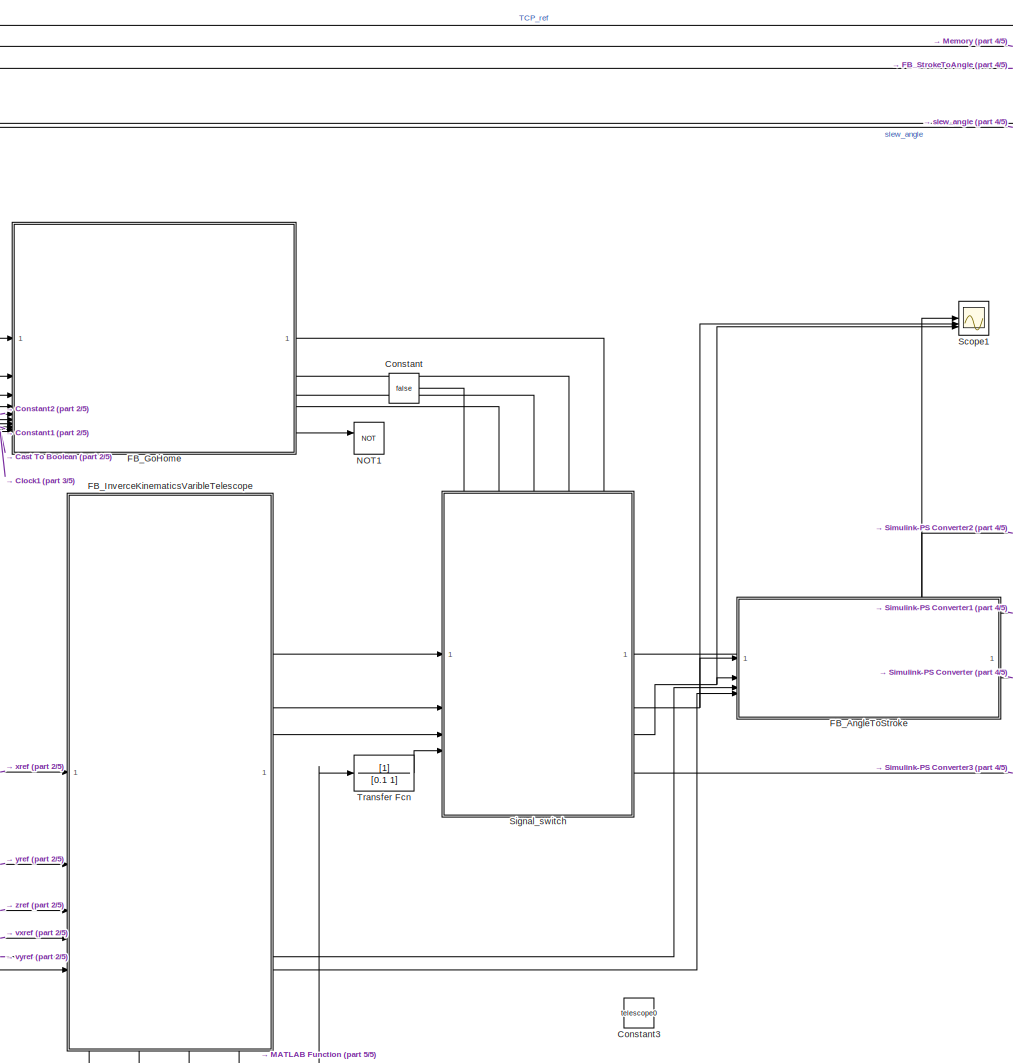
[diagram: root canvas - part 1/5, center side, full height]
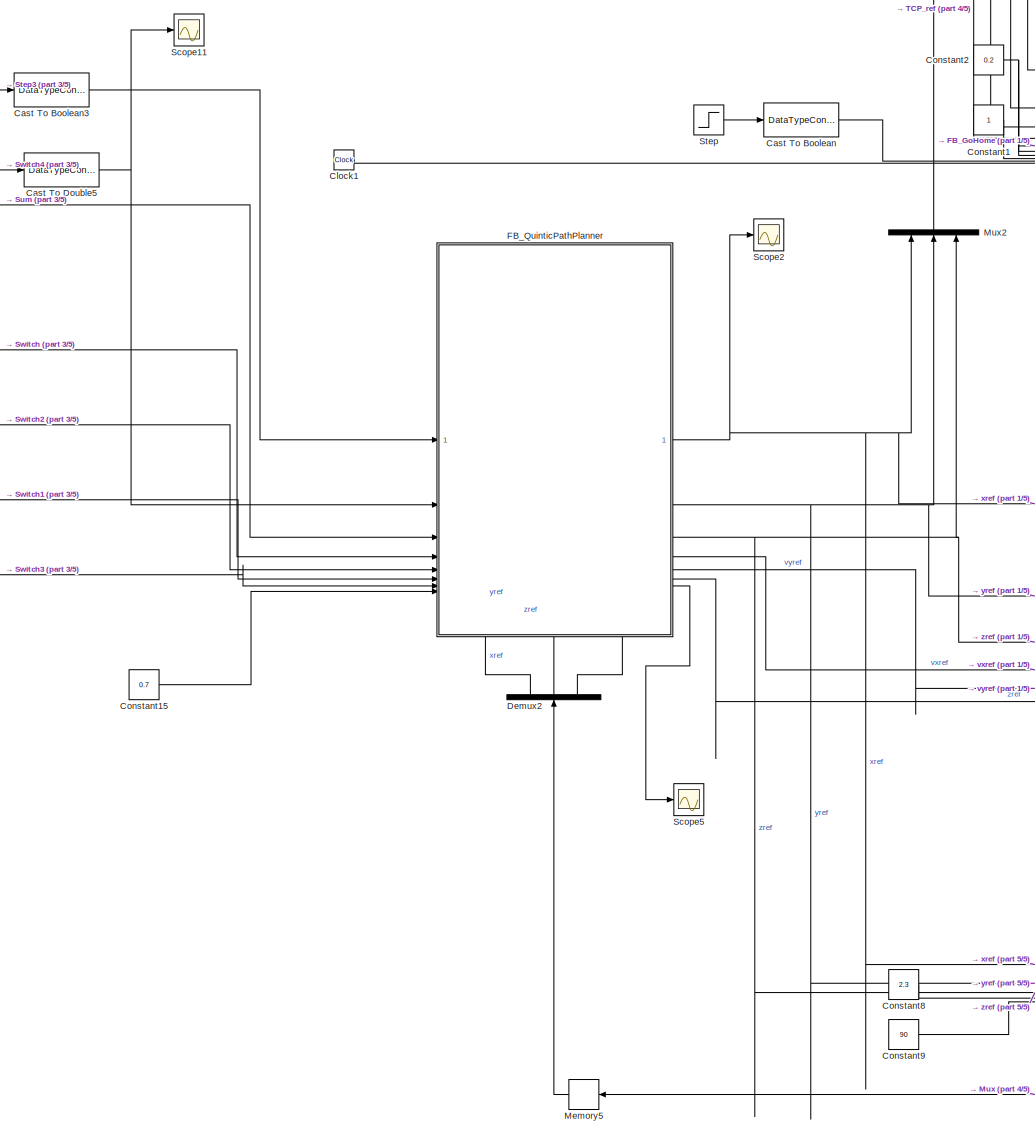
[diagram: root canvas - part 2/5, left side, full height]
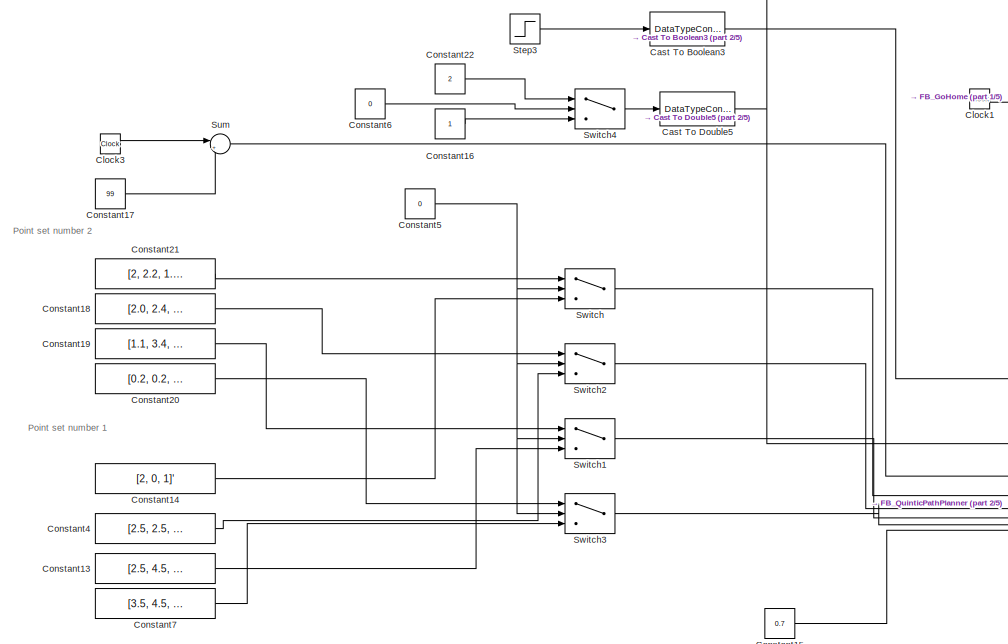
[diagram: root canvas - part 3/5, middle left region]
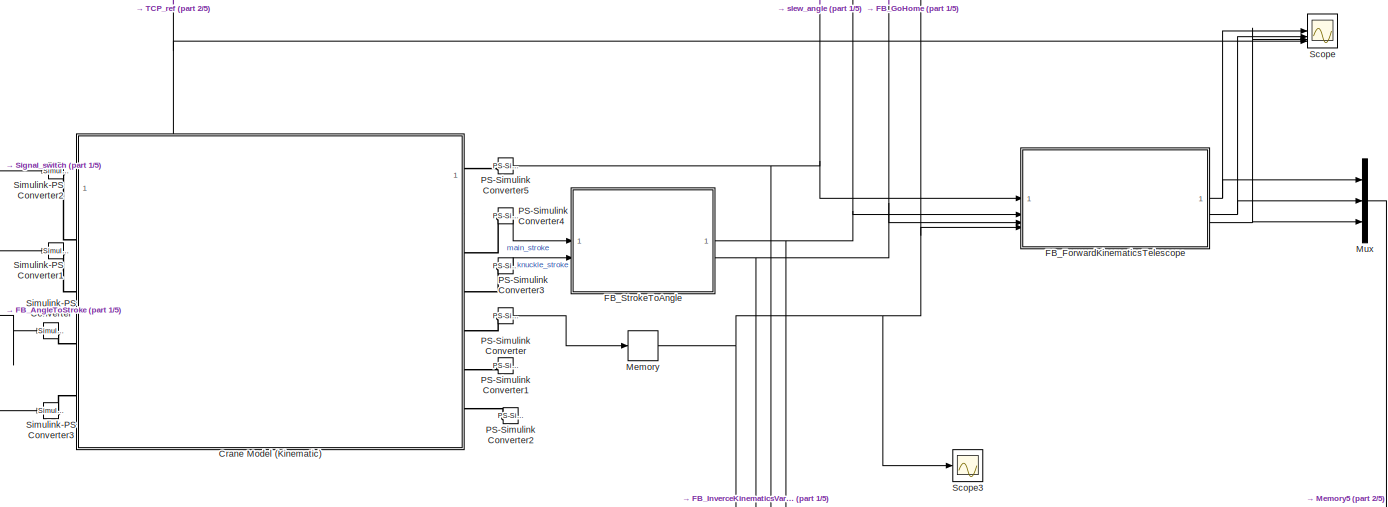
[diagram: root canvas - part 4/5, middle right region]
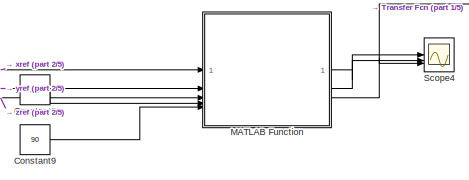
[diagram: root canvas - part 5/5, bottom center region]
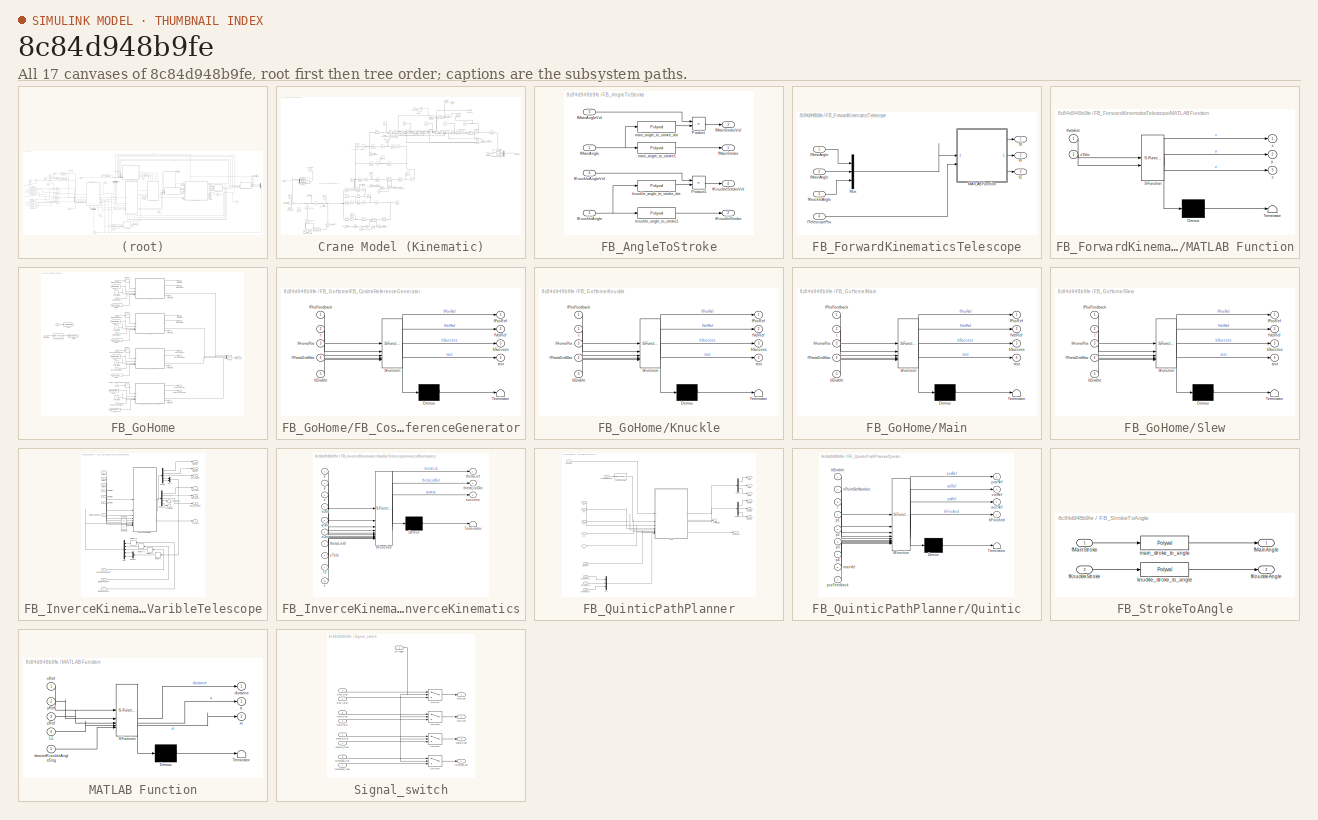
[diagram: thumbnail index - all 17 canvases of the model, root first then tree order]
MODEL slx_8c84d948b9fe
KIND model
CONFIG AbsTol = auto
CONFIG EnableMultiTasking = off
CONFIG FixedStep = Ts
CONFIG MaxStep = 0.005
CONFIG MinStep = auto
CONFIG RelTol = 1e-3
CONFIG SampleTimeConstraint = Unconstrained
CONFIG SolverName = FixedStepAuto
CONFIG StartTime = 0.0
CONFIG StopTime = 40
BLOCK [DataTypeConversion] Cast To Boolean
  OutDataTypeStr = boolean
  RndMeth = Floor
  SaturateOnIntegerOverflow = off
BLOCK [DataTypeConversion] Cast To Boolean3
  OutDataTypeStr = boolean
  RndMeth = Floor
  SaturateOnIntegerOverflow = off
BLOCK [DataTypeConversion] Cast To Double5
  OutDataTypeStr = uint16
  RndMeth = Floor
  SaturateOnIntegerOverflow = off
BLOCK [Clock] Clock1
BLOCK [Clock] Clock3
BLOCK [Constant] Constant
  Value = false
BLOCK [Constant] Constant1
BLOCK [Constant] Constant13
  Value = [2.5, 4.5, -1.0]'
BLOCK [Constant] Constant14
  Value = [2, 0, 1]'
BLOCK [Constant] Constant15
  Value = 0.7
BLOCK [Constant] Constant16
BLOCK [Constant] Constant17
  Value = 99
BLOCK [Constant] Constant18
  Value = [2.0, 2.4, 0.6]'
BLOCK [Constant] Constant19
  Value = [1.1, 3.4, 1.0]'
BLOCK [Constant] Constant2
  Value = 0.2
BLOCK [Constant] Constant20
  Value = [0.2, 0.2, 0.2]'
BLOCK [Constant] Constant21
  Value = [2, 2.2, 1.6]'
BLOCK [Constant] Constant22
  Value = 2
BLOCK [Constant] Constant3
  Value = telescope0
BLOCK [Constant] Constant4
  Value = [2.5, 2.5, 2.0]'
BLOCK [Constant] Constant5
  Value = 0
BLOCK [Constant] Constant6
  Value = 0
BLOCK [Constant] Constant7
  Value = [3.5, 4.5, 3.0]'
BLOCK [Constant] Constant8
  Value = 2.3
BLOCK [Constant] Constant9
  Value = 90
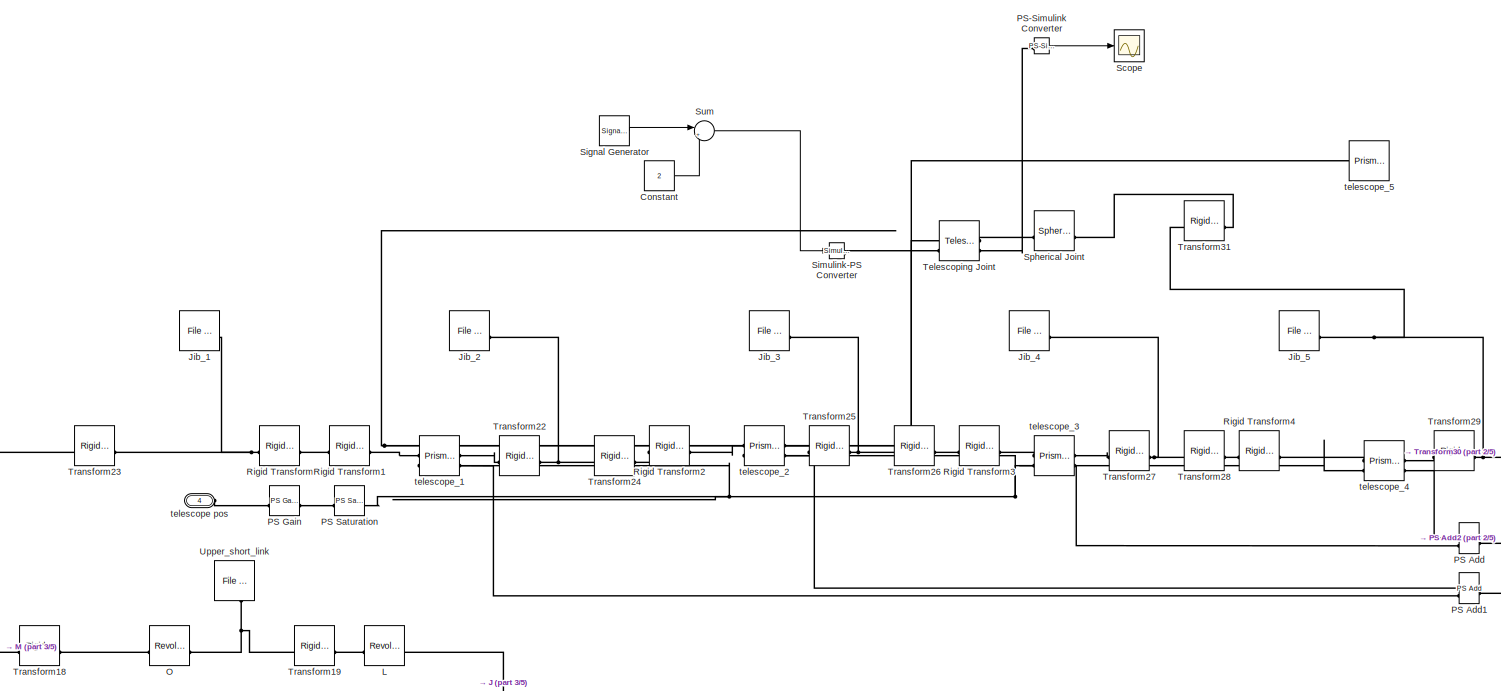
[diagram: Crane Model (Kinematic) - part 1/5, top center region]
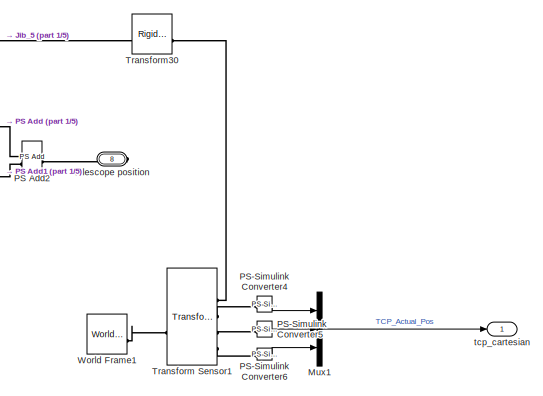
[diagram: Crane Model (Kinematic) - part 2/5, middle right region]
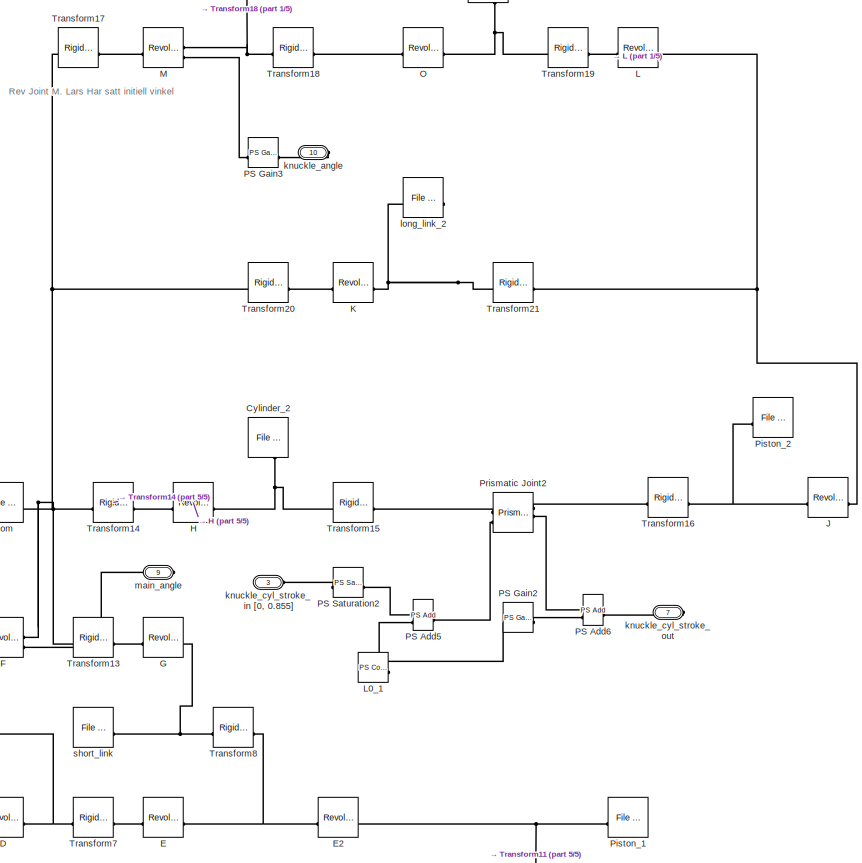
[diagram: Crane Model (Kinematic) - part 3/5, central region]
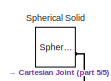
[diagram: Crane Model (Kinematic) - part 4/5, middle left region]
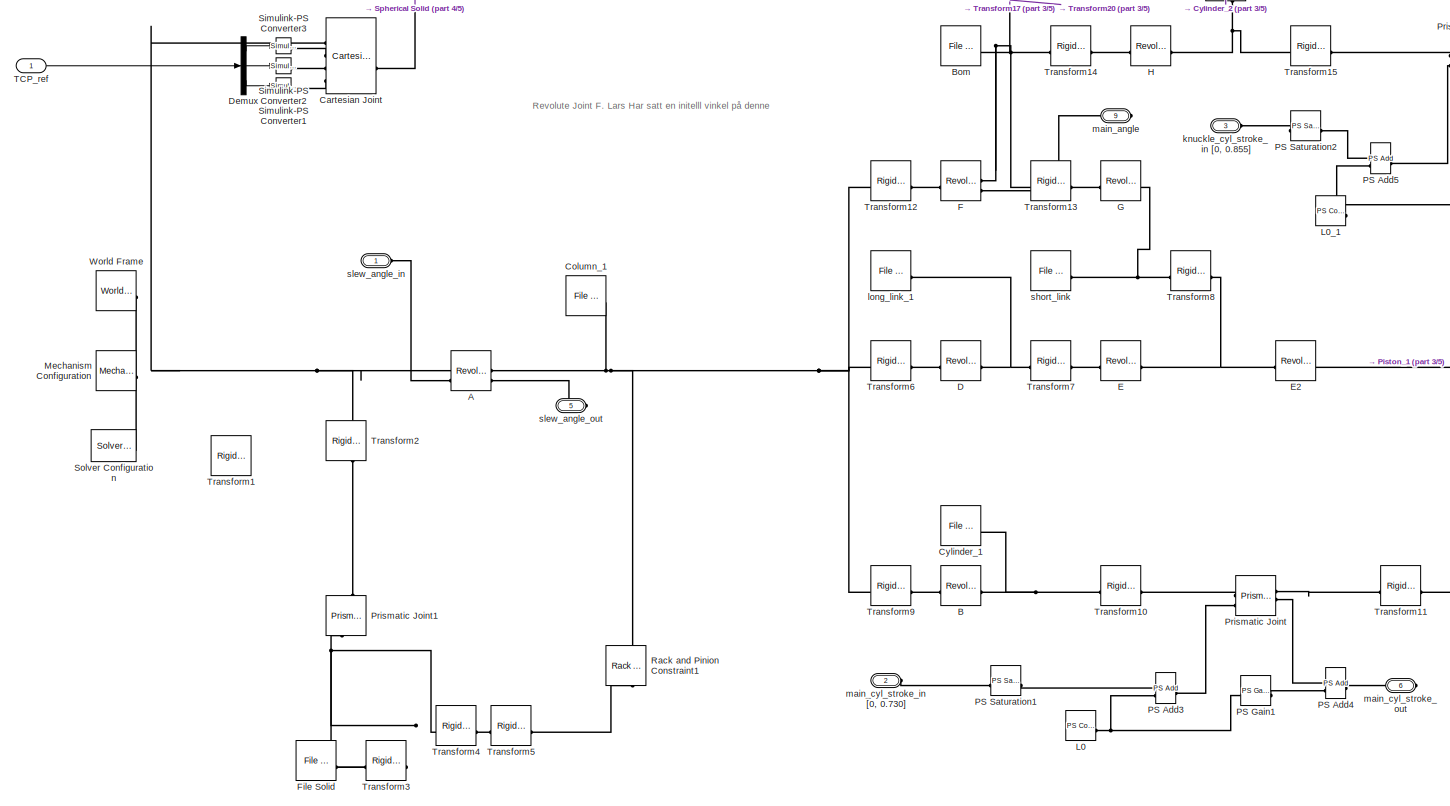
[diagram: Crane Model (Kinematic) - part 5/5, bottom left region]
BLOCK [SubSystem] Crane Model (Kinematic)
  NameLocation = top
  PortSchema = {"entries":[{"content":{"sides":[{"content":{"connectorIds":["LConn1","LConn2","LConn3","LConn4"]},"type":"ConnectorPlacement.EquallySpacedRectSide","uuid":"4a665765-5f1a-426d-91c2-f3af20fe3627"},{"content":{"connectorIds":["RConn1","RConn2","RConn3","RConn4","RConn5","RConn6"],"side":"RIGHT"},"type":"ConnectorPlacement.EquallySpacedRectSide","uuid":"cf43645c-9a50-4bc9-b355-f38e72b1430d"},{"conten...<+329ch>
BLOCK [Reference] Crane Model (Kinematic)/A  REF=sm_lib/Joints/Revolute Joint
  SourceBlock = sm_lib/Joints/Revolute Joint
  SourceType = Revolute Joint
BLOCK [Reference] Crane Model (Kinematic)/B  REF=sm_lib/Joints/Revolute Joint
  SourceBlock = sm_lib/Joints/Revolute Joint
  SourceType = Revolute Joint
BLOCK [Reference] Crane Model (Kinematic)/Bom  REF=sm_lib/Body Elements/File Solid
  SourceBlock = sm_lib/Body Elements/File Solid
  SourceType = File Solid
BLOCK [Reference] Crane Model (Kinematic)/Cartesian Joint  REF=sm_lib/Joints/Cartesian
Joint
  SourceBlock = sm_lib/Joints/Cartesian\nJoint
  SourceType = Cartesian\nJoint
BLOCK [Reference] Crane Model (Kinematic)/Column_1  REF=sm_lib/Body Elements/File Solid
  SourceBlock = sm_lib/Body Elements/File Solid
  SourceType = File Solid
BLOCK [Constant] Crane Model (Kinematic)/Constant
  Commented = on
  Value = 2
BLOCK [Reference] Crane Model (Kinematic)/Cylinder_1  REF=sm_lib/Body Elements/File Solid
  SourceBlock = sm_lib/Body Elements/File Solid
  SourceType = File Solid
BLOCK [Reference] Crane Model (Kinematic)/Cylinder_2  REF=sm_lib/Body Elements/File Solid
  NameLocation = left
  SourceBlock = sm_lib/Body Elements/File Solid
  SourceType = File Solid
BLOCK [Reference] Crane Model (Kinematic)/D  REF=sm_lib/Joints/Revolute Joint
  SourceBlock = sm_lib/Joints/Revolute Joint
  SourceType = Revolute Joint
BLOCK [Demux] Crane Model (Kinematic)/Demux
  Outputs = 3
BLOCK [Reference] Crane Model (Kinematic)/E  REF=sm_lib/Joints/Revolute Joint
  SourceBlock = sm_lib/Joints/Revolute Joint
  SourceType = Revolute Joint
BLOCK [Reference] Crane Model (Kinematic)/E2  REF=sm_lib/Joints/Revolute Joint
  SourceBlock = sm_lib/Joints/Revolute Joint
  SourceType = Revolute Joint
BLOCK [Reference] Crane Model (Kinematic)/F  REF=sm_lib/Joints/Revolute Joint
  SourceBlock = sm_lib/Joints/Revolute Joint
  SourceType = Revolute Joint
BLOCK [Reference] Crane Model (Kinematic)/File Solid  REF=sm_lib/Body Elements/File Solid
  SourceBlock = sm_lib/Body Elements/File Solid
  SourceType = File Solid
BLOCK [Reference] Crane Model (Kinematic)/G  REF=sm_lib/Joints/Revolute Joint
  SourceBlock = sm_lib/Joints/Revolute Joint
  SourceType = Revolute Joint
BLOCK [Reference] Crane Model (Kinematic)/H  REF=sm_lib/Joints/Revolute Joint
  SourceBlock = sm_lib/Joints/Revolute Joint
  SourceType = Revolute Joint
BLOCK [Reference] Crane Model (Kinematic)/J  REF=sm_lib/Joints/Revolute Joint
  SourceBlock = sm_lib/Joints/Revolute Joint
  SourceType = Revolute Joint
BLOCK [Reference] Crane Model (Kinematic)/Jib_1  REF=sm_lib/Body Elements/File Solid
  SourceBlock = sm_lib/Body Elements/File Solid
  SourceType = File Solid
BLOCK [Reference] Crane Model (Kinematic)/Jib_2  REF=sm_lib/Body Elements/File Solid
  SourceBlock = sm_lib/Body Elements/File Solid
  SourceType = File Solid
BLOCK [Reference] Crane Model (Kinematic)/Jib_3  REF=sm_lib/Body Elements/File Solid
  SourceBlock = sm_lib/Body Elements/File Solid
  SourceType = File Solid
BLOCK [Reference] Crane Model (Kinematic)/Jib_4  REF=sm_lib/Body Elements/File Solid
  SourceBlock = sm_lib/Body Elements/File Solid
  SourceType = File Solid
BLOCK [Reference] Crane Model (Kinematic)/Jib_5  REF=sm_lib/Body Elements/File Solid
  SourceBlock = sm_lib/Body Elements/File Solid
  SourceType = File Solid
BLOCK [Reference] Crane Model (Kinematic)/K  REF=sm_lib/Joints/Revolute Joint
  SourceBlock = sm_lib/Joints/Revolute Joint
  SourceType = Revolute Joint
BLOCK [Reference] Crane Model (Kinematic)/L  REF=sm_lib/Joints/Revolute Joint
  SourceBlock = sm_lib/Joints/Revolute Joint
  SourceType = Revolute Joint
BLOCK [Reference] Crane Model (Kinematic)/L0  REF=fl_lib/Physical Signals/Sources/PS Constant
  SourceBlock = fl_lib/Physical Signals/Sources/PS Constant
  SourceType = PS Constant
BLOCK [Reference] Crane Model (Kinematic)/L0_1  REF=fl_lib/Physical Signals/Sources/PS Constant
  SourceBlock = fl_lib/Physical Signals/Sources/PS Constant
  SourceType = PS Constant
BLOCK [Reference] Crane Model (Kinematic)/M  REF=sm_lib/Joints/Revolute Joint
  SourceBlock = sm_lib/Joints/Revolute Joint
  SourceType = Revolute Joint
BLOCK [Reference] Crane Model (Kinematic)/Mechanism Configuration  REF=sm_lib/Utilities/Mechanism
Configuration
  SourceBlock = sm_lib/Utilities/Mechanism\nConfiguration
  SourceType = Mechanism\nConfiguration
BLOCK [Mux] Crane Model (Kinematic)/Mux1
  DisplayOption = bar
  Inputs = 3
BLOCK [Reference] Crane Model (Kinematic)/O  REF=sm_lib/Joints/Revolute Joint
  SourceBlock = sm_lib/Joints/Revolute Joint
  SourceType = Revolute Joint
BLOCK [Reference] Crane Model (Kinematic)/PS Add  REF=fl_lib/Physical Signals/Functions/PS Add
  SourceBlock = fl_lib/Physical Signals/Functions/PS Add
  SourceType = PS Add
BLOCK [Reference] Crane Model (Kinematic)/PS Add1  REF=fl_lib/Physical Signals/Functions/PS Add
  SourceBlock = fl_lib/Physical Signals/Functions/PS Add
  SourceType = PS Add
BLOCK [Reference] Crane Model (Kinematic)/PS Add2  REF=fl_lib/Physical Signals/Functions/PS Add
  SourceBlock = fl_lib/Physical Signals/Functions/PS Add
  SourceType = PS Add
BLOCK [Reference] Crane Model (Kinematic)/PS Add3  REF=fl_lib/Physical Signals/Functions/PS Add
  SourceBlock = fl_lib/Physical Signals/Functions/PS Add
  SourceType = PS Add
BLOCK [Reference] Crane Model (Kinematic)/PS Add4  REF=fl_lib/Physical Signals/Functions/PS Add
  SourceBlock = fl_lib/Physical Signals/Functions/PS Add
  SourceType = PS Add
BLOCK [Reference] Crane Model (Kinematic)/PS Add5  REF=fl_lib/Physical Signals/Functions/PS Add
  SourceBlock = fl_lib/Physical Signals/Functions/PS Add
  SourceType = PS Add
BLOCK [Reference] Crane Model (Kinematic)/PS Add6  REF=fl_lib/Physical Signals/Functions/PS Add
  SourceBlock = fl_lib/Physical Signals/Functions/PS Add
  SourceType = PS Add
BLOCK [Reference] Crane Model (Kinematic)/PS Gain  REF=fl_lib/Physical Signals/Functions/PS Gain
  SourceBlock = fl_lib/Physical Signals/Functions/PS Gain
  SourceType = PS Gain
BLOCK [Reference] Crane Model (Kinematic)/PS Gain1  REF=fl_lib/Physical Signals/Functions/PS Gain
  SourceBlock = fl_lib/Physical Signals/Functions/PS Gain
  SourceType = PS Gain
BLOCK [Reference] Crane Model (Kinematic)/PS Gain2  REF=fl_lib/Physical Signals/Functions/PS Gain
  SourceBlock = fl_lib/Physical Signals/Functions/PS Gain
  SourceType = PS Gain
BLOCK [Reference] Crane Model (Kinematic)/PS Gain3  REF=fl_lib/Physical Signals/Functions/PS Gain
  SourceBlock = fl_lib/Physical Signals/Functions/PS Gain
  SourceType = PS Gain
BLOCK [Reference] Crane Model (Kinematic)/PS Saturation  REF=fl_lib/Physical Signals/Nonlinear Operators/PS Saturation
  SourceBlock = fl_lib/Physical Signals/Nonlinear Operators/PS Saturation
  SourceType = PS Saturation
BLOCK [Reference] Crane Model (Kinematic)/PS Saturation1  REF=fl_lib/Physical Signals/Nonlinear Operators/PS Saturation
  SourceBlock = fl_lib/Physical Signals/Nonlinear Operators/PS Saturation
  SourceType = PS Saturation
BLOCK [Reference] Crane Model (Kinematic)/PS Saturation2  REF=fl_lib/Physical Signals/Nonlinear Operators/PS Saturation
  SourceBlock = fl_lib/Physical Signals/Nonlinear Operators/PS Saturation
  SourceType = PS Saturation
BLOCK [Reference] Crane Model (Kinematic)/PS-Simulink Converter  REF=nesl_utility/PS-Simulink
Converter
  Commented = on
  SourceBlock = nesl_utility/PS-Simulink\nConverter
  SourceType = PS-Simulink\nConverter
BLOCK [Reference] Crane Model (Kinematic)/PS-Simulink Converter4  REF=nesl_utility/PS-Simulink
Converter
  SourceBlock = nesl_utility/PS-Simulink\nConverter
  SourceType = PS-Simulink\nConverter
BLOCK [Reference] Crane Model (Kinematic)/PS-Simulink Converter5  REF=nesl_utility/PS-Simulink
Converter
  SourceBlock = nesl_utility/PS-Simulink\nConverter
  SourceType = PS-Simulink\nConverter
BLOCK [Reference] Crane Model (Kinematic)/PS-Simulink Converter6  REF=nesl_utility/PS-Simulink
Converter
  SourceBlock = nesl_utility/PS-Simulink\nConverter
  SourceType = PS-Simulink\nConverter
BLOCK [Reference] Crane Model (Kinematic)/Piston_1  REF=sm_lib/Body Elements/File Solid
  SourceBlock = sm_lib/Body Elements/File Solid
  SourceType = File Solid
BLOCK [Reference] Crane Model (Kinematic)/Piston_2  REF=sm_lib/Body Elements/File Solid
  SourceBlock = sm_lib/Body Elements/File Solid
  SourceType = File Solid
BLOCK [Reference] Crane Model (Kinematic)/Prismatic Joint  REF=sm_lib/Joints/Prismatic
Joint
  SourceBlock = sm_lib/Joints/Prismatic\nJoint
  SourceType = Prismatic\nJoint
BLOCK [Reference] Crane Model (Kinematic)/Prismatic Joint1  REF=sm_lib/Joints/Prismatic
Joint
  NameLocation = left
  SourceBlock = sm_lib/Joints/Prismatic\nJoint
  SourceType = Prismatic\nJoint
BLOCK [Reference] Crane Model (Kinematic)/Prismatic Joint2  REF=sm_lib/Joints/Prismatic
Joint
  SourceBlock = sm_lib/Joints/Prismatic\nJoint
  SourceType = Prismatic\nJoint
BLOCK [Reference] Crane Model (Kinematic)/Rack and Pinion Constraint1  REF=sm_lib/Gears and
Couplings/Gears/Rack and Pinion
Constraint
  NameLocation = left
  SourceBlock = sm_lib/Gears and\nCouplings/Gears/Rack and Pinion\nConstraint
  SourceType = Rack and Pinion\nConstraint
BLOCK [Reference] Crane Model (Kinematic)/Rigid Transform  REF=sm_lib/Frames and
Transforms/Rigid
Transform
  SourceBlock = sm_lib/Frames and\nTransforms/Rigid\nTransform
  SourceType = Rigid\nTransform
BLOCK [Reference] Crane Model (Kinematic)/Rigid Transform1  REF=sm_lib/Frames and
Transforms/Rigid
Transform
  SourceBlock = sm_lib/Frames and\nTransforms/Rigid\nTransform
  SourceType = Rigid\nTransform
BLOCK [Reference] Crane Model (Kinematic)/Rigid Transform2  REF=sm_lib/Frames and
Transforms/Rigid
Transform
  SourceBlock = sm_lib/Frames and\nTransforms/Rigid\nTransform
  SourceType = Rigid\nTransform
BLOCK [Reference] Crane Model (Kinematic)/Rigid Transform3  REF=sm_lib/Frames and
Transforms/Rigid
Transform
  SourceBlock = sm_lib/Frames and\nTransforms/Rigid\nTransform
  SourceType = Rigid\nTransform
BLOCK [Reference] Crane Model (Kinematic)/Rigid Transform4  REF=sm_lib/Frames and
Transforms/Rigid
Transform
  SourceBlock = sm_lib/Frames and\nTransforms/Rigid\nTransform
  SourceType = Rigid\nTransform
BLOCK [Scope] Crane Model (Kinematic)/Scope
  Commented = on
  Floating = off
  NumInputPorts = 1
  ScopeSpecificationString = Simulink.scopes.TimeScopeBlockCfg('CurrentConfiguration', extmgr.ConfigurationSet(extmgr.Configuration('Core','General UI',true),extmgr.Configuration('Core','Source UI',true),extmgr.Configuration('Sources','WiredSimulink',true),extmgr.Configuration('Visuals','Time Domain',true,'SerializedDisplays',{struct('MinYLimReal','1.00000','MaxYLimReal','3.00000','YLabelReal','','MinYLimMag','1.00000','MaxYL...<+1569ch>
BLOCK [SignalGenerator] Crane Model (Kinematic)/Signal Generator
  Commented = on
  Frequency = 0.5
BLOCK [Reference] Crane Model (Kinematic)/Simulink-PS Converter  REF=nesl_utility/Simulink-PS
Converter
  Commented = on
  SourceBlock = nesl_utility/Simulink-PS\nConverter
  SourceType = Simulink-PS\nConverter
BLOCK [Reference] Crane Model (Kinematic)/Simulink-PS Converter1  REF=nesl_utility/Simulink-PS
Converter
  SourceBlock = nesl_utility/Simulink-PS\nConverter
  SourceType = Simulink-PS\nConverter
BLOCK [Reference] Crane Model (Kinematic)/Simulink-PS Converter2  REF=nesl_utility/Simulink-PS
Converter
  SourceBlock = nesl_utility/Simulink-PS\nConverter
  SourceType = Simulink-PS\nConverter
BLOCK [Reference] Crane Model (Kinematic)/Simulink-PS Converter3  REF=nesl_utility/Simulink-PS
Converter
  SourceBlock = nesl_utility/Simulink-PS\nConverter
  SourceType = Simulink-PS\nConverter
BLOCK [Reference] Crane Model (Kinematic)/Solver Configuration  REF=nesl_utility/Solver
Configuration
  SourceBlock = nesl_utility/Solver\nConfiguration
  SourceType = Solver\nConfiguration
BLOCK [Reference] Crane Model (Kinematic)/Spherical Joint  REF=sm_lib/Joints/Spherical
Joint
  Commented = on
  SourceBlock = sm_lib/Joints/Spherical\nJoint
  SourceType = Spherical\nJoint
BLOCK [Reference] Crane Model (Kinematic)/Spherical Solid  REF=sm_lib/Body Elements/Spherical Solid
  SourceBlock = sm_lib/Body Elements/Spherical Solid
  SourceType = Spherical Solid
BLOCK [Sum] Crane Model (Kinematic)/Sum
  Commented = on
  Inputs = |++
BLOCK [Inport] Crane Model (Kinematic)/TCP_ref
BLOCK [Reference] Crane Model (Kinematic)/Telescoping Joint  REF=sm_lib/Joints/Telescoping
Joint
  Commented = on
  SourceBlock = sm_lib/Joints/Telescoping\nJoint
  SourceType = Telescoping\nJoint
BLOCK [Reference] Crane Model (Kinematic)/Transform Sensor1  REF=sm_lib/Frames and
Transforms/Transform
Sensor
  SourceBlock = sm_lib/Frames and\nTransforms/Transform\nSensor
  SourceType = Transform\nSensor
BLOCK [Reference] Crane Model (Kinematic)/Transform1  REF=sm_lib/Frames and
Transforms/Rigid
Transform
  Commented = on
  SourceBlock = sm_lib/Frames and\nTransforms/Rigid\nTransform
  SourceType = Rigid\nTransform
BLOCK [Reference] Crane Model (Kinematic)/Transform10  REF=sm_lib/Frames and
Transforms/Rigid
Transform
  SourceBlock = sm_lib/Frames and\nTransforms/Rigid\nTransform
  SourceType = Rigid\nTransform
BLOCK [Reference] Crane Model (Kinematic)/Transform11  REF=sm_lib/Frames and
Transforms/Rigid
Transform
  SourceBlock = sm_lib/Frames and\nTransforms/Rigid\nTransform
  SourceType = Rigid\nTransform
BLOCK [Reference] Crane Model (Kinematic)/Transform12  REF=sm_lib/Frames and
Transforms/Rigid
Transform
  SourceBlock = sm_lib/Frames and\nTransforms/Rigid\nTransform
  SourceType = Rigid\nTransform
BLOCK [Reference] Crane Model (Kinematic)/Transform13  REF=sm_lib/Frames and
Transforms/Rigid
Transform
  SourceBlock = sm_lib/Frames and\nTransforms/Rigid\nTransform
  SourceType = Rigid\nTransform
BLOCK [Reference] Crane Model (Kinematic)/Transform14  REF=sm_lib/Frames and
Transforms/Rigid
Transform
  SourceBlock = sm_lib/Frames and\nTransforms/Rigid\nTransform
  SourceType = Rigid\nTransform
BLOCK [Reference] Crane Model (Kinematic)/Transform15  REF=sm_lib/Frames and
Transforms/Rigid
Transform
  SourceBlock = sm_lib/Frames and\nTransforms/Rigid\nTransform
  SourceType = Rigid\nTransform
BLOCK [Reference] Crane Model (Kinematic)/Transform16  REF=sm_lib/Frames and
Transforms/Rigid
Transform
  NameLocation = top
  SourceBlock = sm_lib/Frames and\nTransforms/Rigid\nTransform
  SourceType = Rigid\nTransform
BLOCK [Reference] Crane Model (Kinematic)/Transform17  REF=sm_lib/Frames and
Transforms/Rigid
Transform
  SourceBlock = sm_lib/Frames and\nTransforms/Rigid\nTransform
  SourceType = Rigid\nTransform
BLOCK [Reference] Crane Model (Kinematic)/Transform18  REF=sm_lib/Frames and
Transforms/Rigid
Transform
  SourceBlock = sm_lib/Frames and\nTransforms/Rigid\nTransform
  SourceType = Rigid\nTransform
BLOCK [Reference] Crane Model (Kinematic)/Transform19  REF=sm_lib/Frames and
Transforms/Rigid
Transform
  SourceBlock = sm_lib/Frames and\nTransforms/Rigid\nTransform
  SourceType = Rigid\nTransform
BLOCK [Reference] Crane Model (Kinematic)/Transform2  REF=sm_lib/Frames and
Transforms/Rigid
Transform
  NameLocation = left
  SourceBlock = sm_lib/Frames and\nTransforms/Rigid\nTransform
  SourceType = Rigid\nTransform
BLOCK [Reference] Crane Model (Kinematic)/Transform20  REF=sm_lib/Frames and
Transforms/Rigid
Transform
  SourceBlock = sm_lib/Frames and\nTransforms/Rigid\nTransform
  SourceType = Rigid\nTransform
BLOCK [Reference] Crane Model (Kinematic)/Transform21  REF=sm_lib/Frames and
Transforms/Rigid
Transform
  SourceBlock = sm_lib/Frames and\nTransforms/Rigid\nTransform
  SourceType = Rigid\nTransform
BLOCK [Reference] Crane Model (Kinematic)/Transform22  REF=sm_lib/Frames and
Transforms/Rigid
Transform
  SourceBlock = sm_lib/Frames and\nTransforms/Rigid\nTransform
  SourceType = Rigid\nTransform
BLOCK [Reference] Crane Model (Kinematic)/Transform23  REF=sm_lib/Frames and
Transforms/Rigid
Transform
  SourceBlock = sm_lib/Frames and\nTransforms/Rigid\nTransform
  SourceType = Rigid\nTransform
BLOCK [Reference] Crane Model (Kinematic)/Transform24  REF=sm_lib/Frames and
Transforms/Rigid
Transform
  SourceBlock = sm_lib/Frames and\nTransforms/Rigid\nTransform
  SourceType = Rigid\nTransform
BLOCK [Reference] Crane Model (Kinematic)/Transform25  REF=sm_lib/Frames and
Transforms/Rigid
Transform
  SourceBlock = sm_lib/Frames and\nTransforms/Rigid\nTransform
  SourceType = Rigid\nTransform
BLOCK [Reference] Crane Model (Kinematic)/Transform26  REF=sm_lib/Frames and
Transforms/Rigid
Transform
  SourceBlock = sm_lib/Frames and\nTransforms/Rigid\nTransform
  SourceType = Rigid\nTransform
BLOCK [Reference] Crane Model (Kinematic)/Transform27  REF=sm_lib/Frames and
Transforms/Rigid
Transform
  SourceBlock = sm_lib/Frames and\nTransforms/Rigid\nTransform
  SourceType = Rigid\nTransform
BLOCK [Reference] Crane Model (Kinematic)/Transform28  REF=sm_lib/Frames and
Transforms/Rigid
Transform
  SourceBlock = sm_lib/Frames and\nTransforms/Rigid\nTransform
  SourceType = Rigid\nTransform
BLOCK [Reference] Crane Model (Kinematic)/Transform29  REF=sm_lib/Frames and
Transforms/Rigid
Transform
  SourceBlock = sm_lib/Frames and\nTransforms/Rigid\nTransform
  SourceType = Rigid\nTransform
BLOCK [Reference] Crane Model (Kinematic)/Transform3  REF=sm_lib/Frames and
Transforms/Rigid
Transform
  SourceBlock = sm_lib/Frames and\nTransforms/Rigid\nTransform
  SourceType = Rigid\nTransform
BLOCK [Reference] Crane Model (Kinematic)/Transform30  REF=sm_lib/Frames and
Transforms/Rigid
Transform
  SourceBlock = sm_lib/Frames and\nTransforms/Rigid\nTransform
  SourceType = Rigid\nTransform
BLOCK [Reference] Crane Model (Kinematic)/Transform31  REF=sm_lib/Frames and
Transforms/Rigid
Transform
  Commented = on
  SourceBlock = sm_lib/Frames and\nTransforms/Rigid\nTransform
  SourceType = Rigid\nTransform
BLOCK [Reference] Crane Model (Kinematic)/Transform4  REF=sm_lib/Frames and
Transforms/Rigid
Transform
  SourceBlock = sm_lib/Frames and\nTransforms/Rigid\nTransform
  SourceType = Rigid\nTransform
BLOCK [Reference] Crane Model (Kinematic)/Transform5  REF=sm_lib/Frames and
Transforms/Rigid
Transform
  SourceBlock = sm_lib/Frames and\nTransforms/Rigid\nTransform
  SourceType = Rigid\nTransform
BLOCK [Reference] Crane Model (Kinematic)/Transform6  REF=sm_lib/Frames and
Transforms/Rigid
Transform
  SourceBlock = sm_lib/Frames and\nTransforms/Rigid\nTransform
  SourceType = Rigid\nTransform
BLOCK [Reference] Crane Model (Kinematic)/Transform7  REF=sm_lib/Frames and
Transforms/Rigid
Transform
  SourceBlock = sm_lib/Frames and\nTransforms/Rigid\nTransform
  SourceType = Rigid\nTransform
BLOCK [Reference] Crane Model (Kinematic)/Transform8  REF=sm_lib/Frames and
Transforms/Rigid
Transform
  SourceBlock = sm_lib/Frames and\nTransforms/Rigid\nTransform
  SourceType = Rigid\nTransform
BLOCK [Reference] Crane Model (Kinematic)/Transform9  REF=sm_lib/Frames and
Transforms/Rigid
Transform
  SourceBlock = sm_lib/Frames and\nTransforms/Rigid\nTransform
  SourceType = Rigid\nTransform
BLOCK [Reference] Crane Model (Kinematic)/Upper_short_link  REF=sm_lib/Body Elements/File Solid
  NameLocation = left
  SourceBlock = sm_lib/Body Elements/File Solid
  SourceType = File Solid
BLOCK [Reference] Crane Model (Kinematic)/World Frame  REF=sm_lib/Frames and
Transforms/World Frame
  SourceBlock = sm_lib/Frames and\nTransforms/World Frame
  SourceType = World Frame
BLOCK [Reference] Crane Model (Kinematic)/World Frame1  REF=sm_lib/Frames and
Transforms/World Frame
  SourceBlock = sm_lib/Frames and\nTransforms/World Frame
  SourceType = World Frame
BLOCK [PMIOPort] Crane Model (Kinematic)/knuckle_angle
  Port = 10
  Side = Right
BLOCK [PMIOPort] Crane Model (Kinematic)/knuckle_cyl_stroke_in [0, 0.855]
  Port = 3
  Side = Left
BLOCK [PMIOPort] Crane Model (Kinematic)/knuckle_cyl_stroke_out
  Port = 7
  Side = Right
BLOCK [Reference] Crane Model (Kinematic)/long_link_1  REF=sm_lib/Body Elements/File Solid
  SourceBlock = sm_lib/Body Elements/File Solid
  SourceType = File Solid
BLOCK [Reference] Crane Model (Kinematic)/long_link_2  REF=sm_lib/Body Elements/File Solid
  SourceBlock = sm_lib/Body Elements/File Solid
  SourceType = File Solid
BLOCK [PMIOPort] Crane Model (Kinematic)/main_angle
  Port = 9
  Side = Right
BLOCK [PMIOPort] Crane Model (Kinematic)/main_cyl_stroke_in [0, 0.730]
  Port = 2
  Side = Left
BLOCK [PMIOPort] Crane Model (Kinematic)/main_cyl_stroke_out
  Port = 6
  Side = Right
BLOCK [Reference] Crane Model (Kinematic)/short_link  REF=sm_lib/Body Elements/File Solid
  SourceBlock = sm_lib/Body Elements/File Solid
  SourceType = File Solid
BLOCK [PMIOPort] Crane Model (Kinematic)/slew_angle_in
  Side = Left
BLOCK [PMIOPort] Crane Model (Kinematic)/slew_angle_out
  Port = 5
  Side = Right
BLOCK [Outport] Crane Model (Kinematic)/tcp_cartesian
BLOCK [PMIOPort] Crane Model (Kinematic)/telescope pos
  Port = 4
  Side = Left
BLOCK [PMIOPort] Crane Model (Kinematic)/telescope position
  Port = 8
  Side = Right
BLOCK [Reference] Crane Model (Kinematic)/telescope_1  REF=sm_lib/Joints/Prismatic
Joint
  SourceBlock = sm_lib/Joints/Prismatic\nJoint
  SourceType = Prismatic\nJoint
BLOCK [Reference] Crane Model (Kinematic)/telescope_2  REF=sm_lib/Joints/Prismatic
Joint
  SourceBlock = sm_lib/Joints/Prismatic\nJoint
  SourceType = Prismatic\nJoint
BLOCK [Reference] Crane Model (Kinematic)/telescope_3  REF=sm_lib/Joints/Prismatic
Joint
  SourceBlock = sm_lib/Joints/Prismatic\nJoint
  SourceType = Prismatic\nJoint
BLOCK [Reference] Crane Model (Kinematic)/telescope_4  REF=sm_lib/Joints/Prismatic
Joint
  SourceBlock = sm_lib/Joints/Prismatic\nJoint
  SourceType = Prismatic\nJoint
BLOCK [Reference] Crane Model (Kinematic)/telescope_5  REF=sm_lib/Joints/Prismatic
Joint
  Commented = on
  SourceBlock = sm_lib/Joints/Prismatic\nJoint
  SourceType = Prismatic\nJoint
BLOCK [Demux] Demux2
  NameLocation = right
  Outputs = 3
BLOCK [SubSystem] FB_AngleToStroke
  TreatAsAtomicUnit = on
BLOCK [Product] FB_AngleToStroke/Product
BLOCK [Product] FB_AngleToStroke/Product1
BLOCK [Inport] FB_AngleToStroke/fKnuckleAngle
  Port = 2
BLOCK [Inport] FB_AngleToStroke/fKnuckleAngleVel
  Port = 4
BLOCK [Outport] FB_AngleToStroke/fKnuckleStroke
  Port = 2
BLOCK [Outport] FB_AngleToStroke/fKnuckleStrokeVel
  Port = 4
BLOCK [Inport] FB_AngleToStroke/fMainAngle
BLOCK [Inport] FB_AngleToStroke/fMainAngleVel
  Port = 3
BLOCK [Outport] FB_AngleToStroke/fMainStroke
BLOCK [Outport] FB_AngleToStroke/fMainStrokeVel
  Port = 3
BLOCK [Polyval] FB_AngleToStroke/knuckle_angle_to_stroke1
  Coefs = p_k_angle_to_stroke
BLOCK [Polyval] FB_AngleToStroke/knuckle_angle_to_stroke_dot
  Coefs = dp_k_angle_to_stroke
BLOCK [Polyval] FB_AngleToStroke/main_angle_to_stroke1
  Coefs = p_m_angle_to_stroke
BLOCK [Polyval] FB_AngleToStroke/main_angle_to_stroke_dot
  Coefs = dp_m_angle_to_stroke
BLOCK [SubSystem] FB_ForwardKinematicsTelescope
  NameLocation = top
  TreatAsAtomicUnit = on
BLOCK [SubSystem] FB_ForwardKinematicsTelescope/MATLAB Function
  ErrorFcn = Stateflow.Translate.translate
  PermitHierarchicalResolution = ExplicitOnly
  SFBlockType = MATLAB Function
  TreatAsAtomicUnit = on
BLOCK [Demux] FB_ForwardKinematicsTelescope/MATLAB Function/ Demux 
  Outputs = 1
BLOCK [S-Function] FB_ForwardKinematicsTelescope/MATLAB Function/ SFunction 
  EnableBusSupport = on
  FunctionName = sf_sfun
  PortCounts = [2 4]
  SFcnIsStateOwnerBlock = off
  SFunctionDeploymentMode = off
  Tag = Stateflow S-Function 8
BLOCK [Terminator] FB_ForwardKinematicsTelescope/MATLAB Function/ Terminator 
BLOCK [Inport] FB_ForwardKinematicsTelescope/MATLAB Function/thetalist
BLOCK [Outport] FB_ForwardKinematicsTelescope/MATLAB Function/x
BLOCK [Inport] FB_ForwardKinematicsTelescope/MATLAB Function/xTele
  Port = 2
BLOCK [Outport] FB_ForwardKinematicsTelescope/MATLAB Function/y
  Port = 2
BLOCK [Outport] FB_ForwardKinematicsTelescope/MATLAB Function/z
  Port = 3
BLOCK [Mux] FB_ForwardKinematicsTelescope/Mux
  DisplayOption = bar
  Inputs = 3
BLOCK [Inport] FB_ForwardKinematicsTelescope/fKnuckleAngle
  Port = 3
BLOCK [Inport] FB_ForwardKinematicsTelescope/fMainAngle
  Port = 2
BLOCK [Inport] FB_ForwardKinematicsTelescope/fSlewAngle
BLOCK [Inport] FB_ForwardKinematicsTelescope/fTelescopePos
  Port = 4
BLOCK [Outport] FB_ForwardKinematicsTelescope/fX
BLOCK [Outport] FB_ForwardKinematicsTelescope/fY
  Port = 2
BLOCK [Outport] FB_ForwardKinematicsTelescope/fZ
  Port = 3
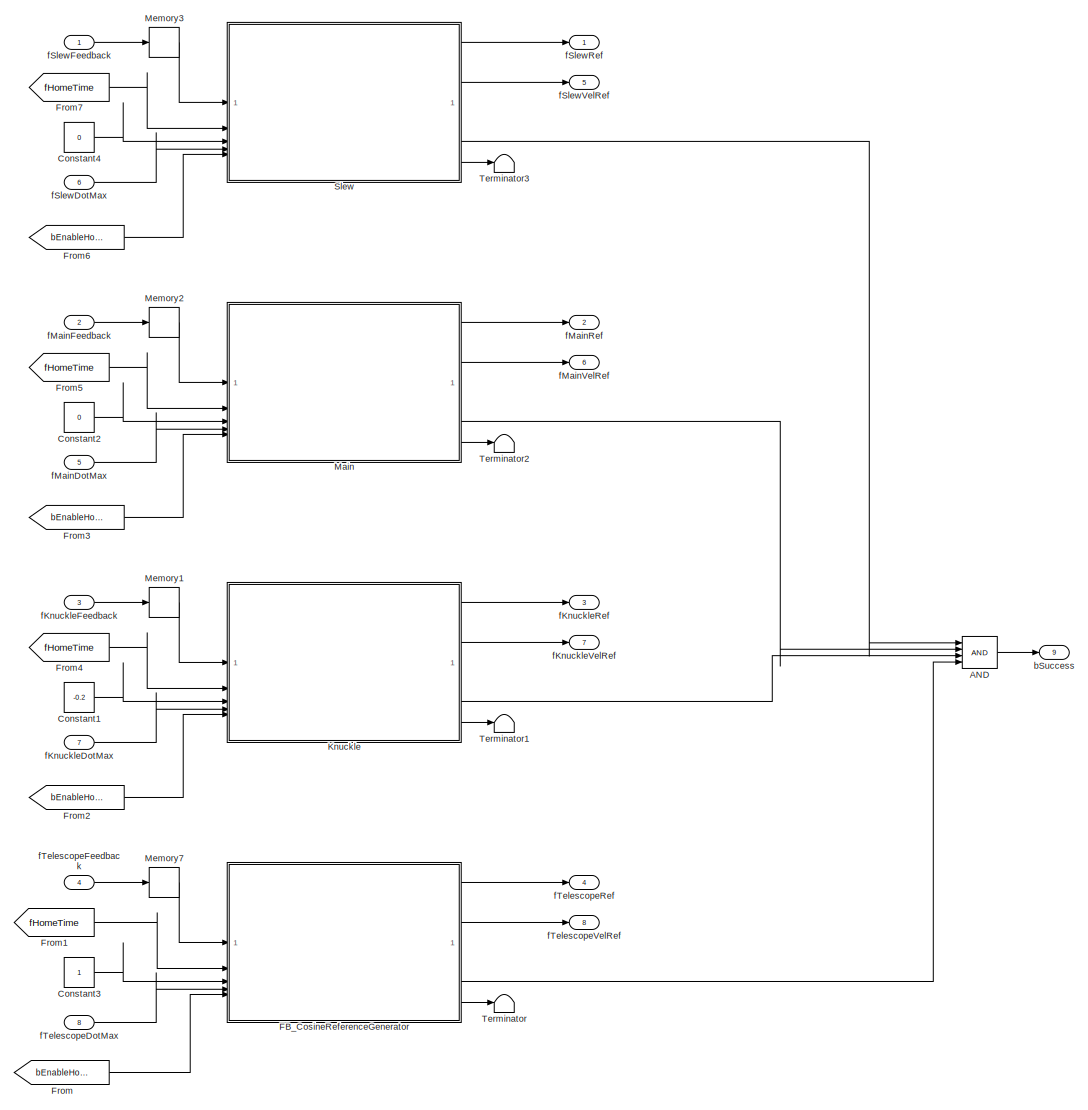
[diagram: FB_GoHome - part 1/2, center side, full height]
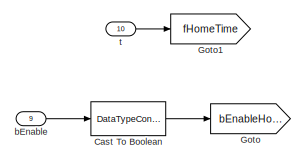
[diagram: FB_GoHome - part 2/2, middle left region]
BLOCK [SubSystem] FB_GoHome
  NameLocation = top
BLOCK [Logic] FB_GoHome/AND
  AllPortsSameDT = off
  IconShape = distinctive
  Inputs = 4
  OutDataTypeStr = boolean
BLOCK [DataTypeConversion] FB_GoHome/Cast To Boolean
  OutDataTypeStr = boolean
  RndMeth = Floor
  SaturateOnIntegerOverflow = off
BLOCK [Constant] FB_GoHome/Constant1
  Value = -0.2
BLOCK [Constant] FB_GoHome/Constant2
  Value = 0
BLOCK [Constant] FB_GoHome/Constant3
BLOCK [Constant] FB_GoHome/Constant4
  Value = 0
BLOCK [SubSystem] FB_GoHome/FB_CosineReferenceGenerator
  ErrorFcn = Stateflow.Translate.translate
  PermitHierarchicalResolution = ExplicitOnly
  SFBlockType = MATLAB Function
  TreatAsAtomicUnit = on
BLOCK [Demux] FB_GoHome/FB_CosineReferenceGenerator/ Demux 
  Outputs = 1
BLOCK [S-Function] FB_GoHome/FB_CosineReferenceGenerator/ SFunction 
  EnableBusSupport = on
  FunctionName = sf_sfun
  PortCounts = [5 5]
  SFcnIsStateOwnerBlock = off
  SFunctionDeploymentMode = off
  Tag = Stateflow S-Function 5
BLOCK [Terminator] FB_GoHome/FB_CosineReferenceGenerator/ Terminator 
BLOCK [Inport] FB_GoHome/FB_CosineReferenceGenerator/bEnable
  Port = 5
BLOCK [Outport] FB_GoHome/FB_CosineReferenceGenerator/bSuccess
  Port = 3
BLOCK [Inport] FB_GoHome/FB_CosineReferenceGenerator/fHomePos
  Port = 3
BLOCK [Inport] FB_GoHome/FB_CosineReferenceGenerator/fPosFeedback
BLOCK [Outport] FB_GoHome/FB_CosineReferenceGenerator/fPosRef
BLOCK [Inport] FB_GoHome/FB_CosineReferenceGenerator/fThetaDotMax
  Port = 4
BLOCK [Outport] FB_GoHome/FB_CosineReferenceGenerator/fVelRef
  Port = 2
BLOCK [Inport] FB_GoHome/FB_CosineReferenceGenerator/t
  Port = 2
BLOCK [Outport] FB_GoHome/FB_CosineReferenceGenerator/test
  Port = 4
BLOCK [From] FB_GoHome/From
  GotoTag = bEnableHome
BLOCK [From] FB_GoHome/From1
  GotoTag = fHomeTime
BLOCK [From] FB_GoHome/From2
  GotoTag = bEnableHome
BLOCK [From] FB_GoHome/From3
  GotoTag = bEnableHome
BLOCK [From] FB_GoHome/From4
  GotoTag = fHomeTime
BLOCK [From] FB_GoHome/From5
  GotoTag = fHomeTime
BLOCK [From] FB_GoHome/From6
  GotoTag = bEnableHome
BLOCK [From] FB_GoHome/From7
  GotoTag = fHomeTime
BLOCK [Goto] FB_GoHome/Goto
  GotoTag = bEnableHome
BLOCK [Goto] FB_GoHome/Goto1
  GotoTag = fHomeTime
BLOCK [SubSystem] FB_GoHome/Knuckle
  ErrorFcn = Stateflow.Translate.translate
  PermitHierarchicalResolution = ExplicitOnly
  SFBlockType = MATLAB Function
  TreatAsAtomicUnit = on
BLOCK [Demux] FB_GoHome/Knuckle/ Demux 
  Outputs = 1
BLOCK [S-Function] FB_GoHome/Knuckle/ SFunction 
  EnableBusSupport = on
  FunctionName = sf_sfun
  PortCounts = [5 5]
  SFcnIsStateOwnerBlock = off
  SFunctionDeploymentMode = off
  Tag = Stateflow S-Function 1
BLOCK [Terminator] FB_GoHome/Knuckle/ Terminator 
BLOCK [Inport] FB_GoHome/Knuckle/bEnable
  Port = 5
BLOCK [Outport] FB_GoHome/Knuckle/bSuccess
  Port = 3
BLOCK [Inport] FB_GoHome/Knuckle/fHomePos
  Port = 3
BLOCK [Inport] FB_GoHome/Knuckle/fPosFeedback
BLOCK [Outport] FB_GoHome/Knuckle/fPosRef
BLOCK [Inport] FB_GoHome/Knuckle/fThetaDotMax
  Port = 4
BLOCK [Outport] FB_GoHome/Knuckle/fVelRef
  Port = 2
BLOCK [Inport] FB_GoHome/Knuckle/t
  Port = 2
BLOCK [Outport] FB_GoHome/Knuckle/test
  Port = 4
BLOCK [SubSystem] FB_GoHome/Main
  ErrorFcn = Stateflow.Translate.translate
  PermitHierarchicalResolution = ExplicitOnly
  SFBlockType = MATLAB Function
  TreatAsAtomicUnit = on
BLOCK [Demux] FB_GoHome/Main/ Demux 
  Outputs = 1
BLOCK [S-Function] FB_GoHome/Main/ SFunction 
  EnableBusSupport = on
  FunctionName = sf_sfun
  PortCounts = [5 5]
  SFcnIsStateOwnerBlock = off
  SFunctionDeploymentMode = off
  Tag = Stateflow S-Function 3
BLOCK [Terminator] FB_GoHome/Main/ Terminator 
BLOCK [Inport] FB_GoHome/Main/bEnable
  Port = 5
BLOCK [Outport] FB_GoHome/Main/bSuccess
  Port = 3
BLOCK [Inport] FB_GoHome/Main/fHomePos
  Port = 3
BLOCK [Inport] FB_GoHome/Main/fPosFeedback
BLOCK [Outport] FB_GoHome/Main/fPosRef
BLOCK [Inport] FB_GoHome/Main/fThetaDotMax
  Port = 4
BLOCK [Outport] FB_GoHome/Main/fVelRef
  Port = 2
BLOCK [Inport] FB_GoHome/Main/t
  Port = 2
BLOCK [Outport] FB_GoHome/Main/test
  Port = 4
BLOCK [Memory] FB_GoHome/Memory1
  InitialCondition = thetaList0(3)
BLOCK [Memory] FB_GoHome/Memory2
  InitialCondition = thetaList0(2)
BLOCK [Memory] FB_GoHome/Memory3
  InitialCondition = thetaList0(1)
BLOCK [Memory] FB_GoHome/Memory7
  InitialCondition = telescope0
BLOCK [SubSystem] FB_GoHome/Slew
  ErrorFcn = Stateflow.Translate.translate
  PermitHierarchicalResolution = ExplicitOnly
  SFBlockType = MATLAB Function
  TreatAsAtomicUnit = on
BLOCK [Demux] FB_GoHome/Slew/ Demux 
  Outputs = 1
BLOCK [S-Function] FB_GoHome/Slew/ SFunction 
  EnableBusSupport = on
  FunctionName = sf_sfun
  PortCounts = [5 5]
  SFcnIsStateOwnerBlock = off
  SFunctionDeploymentMode = off
  Tag = Stateflow S-Function 4
BLOCK [Terminator] FB_GoHome/Slew/ Terminator 
BLOCK [Inport] FB_GoHome/Slew/bEnable
  Port = 5
BLOCK [Outport] FB_GoHome/Slew/bSuccess
  Port = 3
BLOCK [Inport] FB_GoHome/Slew/fHomePos
  Port = 3
BLOCK [Inport] FB_GoHome/Slew/fPosFeedback
BLOCK [Outport] FB_GoHome/Slew/fPosRef
BLOCK [Inport] FB_GoHome/Slew/fThetaDotMax
  Port = 4
BLOCK [Outport] FB_GoHome/Slew/fVelRef
  Port = 2
BLOCK [Inport] FB_GoHome/Slew/t
  Port = 2
BLOCK [Outport] FB_GoHome/Slew/test
  Port = 4
BLOCK [Terminator] FB_GoHome/Terminator
BLOCK [Terminator] FB_GoHome/Terminator1
BLOCK [Terminator] FB_GoHome/Terminator2
BLOCK [Terminator] FB_GoHome/Terminator3
BLOCK [Inport] FB_GoHome/bEnable
  Port = 9
BLOCK [Outport] FB_GoHome/bSuccess
  Port = 9
BLOCK [Inport] FB_GoHome/fKnuckleDotMax
  Port = 7
BLOCK [Inport] FB_GoHome/fKnuckleFeedback
  Port = 3
BLOCK [Outport] FB_GoHome/fKnuckleRef
  Port = 3
BLOCK [Outport] FB_GoHome/fKnuckleVelRef
  Port = 7
BLOCK [Inport] FB_GoHome/fMainDotMax
  Port = 5
BLOCK [Inport] FB_GoHome/fMainFeedback
  Port = 2
BLOCK [Outport] FB_GoHome/fMainRef
  Port = 2
BLOCK [Outport] FB_GoHome/fMainVelRef
  Port = 6
BLOCK [Inport] FB_GoHome/fSlewDotMax
  Port = 6
BLOCK [Inport] FB_GoHome/fSlewFeedback
BLOCK [Outport] FB_GoHome/fSlewRef
BLOCK [Outport] FB_GoHome/fSlewVelRef
  Port = 5
BLOCK [Inport] FB_GoHome/fTelescopeDotMax
  Port = 8
BLOCK [Inport] FB_GoHome/fTelescopeFeedback
  Port = 4
BLOCK [Outport] FB_GoHome/fTelescopeRef
  Port = 4
BLOCK [Outport] FB_GoHome/fTelescopeVelRef
  Port = 8
BLOCK [Inport] FB_GoHome/t
  Port = 10
BLOCK [SubSystem] FB_InverceKinematicsVaribleTelescope
  NameLocation = top
  PortSchema = {"entries":[{"content":{"sides":[{"content":{"connectorIds":["In1","In2","In3","In4","In5","In6"]},"type":"ConnectorPlacement.EquallySpacedRectSide","uuid":"b7f3f39a-cc1b-4519-b948-004466b4d293"},{"content":{"connectorIds":["Out1","Out2","Out3","Out4","Out5","Out6","Out7"],"side":"RIGHT"},"type":"ConnectorPlacement.EquallySpacedRectSide","uuid":"cf571c2f-2cc7-4d1d-bbc1-a75d80a0878e"},{"content":{"...<+462ch>
  TreatAsAtomicUnit = on
BLOCK [Constant] FB_InverceKinematicsVaribleTelescope/Constant
  Value = Ts
BLOCK [Constant] FB_InverceKinematicsVaribleTelescope/Constant1
  Value = 5
BLOCK [Demux] FB_InverceKinematicsVaribleTelescope/Demux
  Outputs = 5
BLOCK [Demux] FB_InverceKinematicsVaribleTelescope/Demux1
  NameLocation = top
  Outputs = 2
BLOCK [Demux] FB_InverceKinematicsVaribleTelescope/Demux2
  Outputs = 5
BLOCK [Memory] FB_InverceKinematicsVaribleTelescope/Memory
  InitialCondition = [thetaList0(4), thetaList0(5)]'
  NameLocation = top
BLOCK [Memory] FB_InverceKinematicsVaribleTelescope/Memory1
  InitialCondition = thetaList0(3)
  NameLocation = top
BLOCK [Memory] FB_InverceKinematicsVaribleTelescope/Memory2
  InitialCondition = thetaList0(2)
  NameLocation = top
BLOCK [Memory] FB_InverceKinematicsVaribleTelescope/Memory3
  InitialCondition = thetaList0(1)
  NameLocation = top
BLOCK [Mux] FB_InverceKinematicsVaribleTelescope/Mux
  DisplayOption = bar
  Inputs = 5
  NameLocation = top
BLOCK [Mux] FB_InverceKinematicsVaribleTelescope/Mux1
  DisplayOption = bar
  Inputs = 2
BLOCK [Terminator] FB_InverceKinematicsVaribleTelescope/Terminator
BLOCK [Terminator] FB_InverceKinematicsVaribleTelescope/Terminator1
BLOCK [Inport] FB_InverceKinematicsVaribleTelescope/fKnuckleFeedback
  Port = 9
BLOCK [Outport] FB_InverceKinematicsVaribleTelescope/fKnuckleRef
  Port = 3
BLOCK [Outport] FB_InverceKinematicsVaribleTelescope/fKnuckleVelRef
  Port = 6
BLOCK [Inport] FB_InverceKinematicsVaribleTelescope/fMainFeedback
  Port = 8
BLOCK [Outport] FB_InverceKinematicsVaribleTelescope/fMainRef
  Port = 2
BLOCK [Outport] FB_InverceKinematicsVaribleTelescope/fMainVelRef
  Port = 5
BLOCK [Inport] FB_InverceKinematicsVaribleTelescope/fSlewFeedback
  Port = 7
BLOCK [Outport] FB_InverceKinematicsVaribleTelescope/fSlewRef
BLOCK [Outport] FB_InverceKinematicsVaribleTelescope/fSlewVelRef
  Port = 4
BLOCK [Inport] FB_InverceKinematicsVaribleTelescope/fTelescopePos
  Port = 10
BLOCK [Inport] FB_InverceKinematicsVaribleTelescope/fXDotRef
  Port = 4
BLOCK [Inport] FB_InverceKinematicsVaribleTelescope/fXRef
BLOCK [Inport] FB_InverceKinematicsVaribleTelescope/fYDotRef
  Port = 5
BLOCK [Inport] FB_InverceKinematicsVaribleTelescope/fYRef
  Port = 2
BLOCK [Inport] FB_InverceKinematicsVaribleTelescope/fZDotRef
  Port = 6
BLOCK [Inport] FB_InverceKinematicsVaribleTelescope/fZRef
  Port = 3
BLOCK [SubSystem] FB_InverceKinematicsVaribleTelescope/inverceKinematics
  ErrorFcn = Stateflow.Translate.translate
  PermitHierarchicalResolution = ExplicitOnly
  SFBlockType = MATLAB Function
  TreatAsAtomicUnit = on
BLOCK [Demux] FB_InverceKinematicsVaribleTelescope/inverceKinematics/ Demux 
  Outputs = 1
BLOCK [S-Function] FB_InverceKinematicsVaribleTelescope/inverceKinematics/ SFunction 
  EnableBusSupport = on
  FunctionName = sf_sfun
  PortCounts = [10 4]
  SFcnIsStateOwnerBlock = off
  SFunctionDeploymentMode = off
  Tag = Stateflow S-Function 2
BLOCK [Terminator] FB_InverceKinematicsVaribleTelescope/inverceKinematics/ Terminator 
BLOCK [Inport] FB_InverceKinematicsVaribleTelescope/inverceKinematics/Ts
  Port = 9
BLOCK [Outport] FB_InverceKinematicsVaribleTelescope/inverceKinematics/success
  Port = 3
BLOCK [Inport] FB_InverceKinematicsVaribleTelescope/inverceKinematics/t
  Port = 10
BLOCK [Outport] FB_InverceKinematicsVaribleTelescope/inverceKinematics/thetaList
BLOCK [Inport] FB_InverceKinematicsVaribleTelescope/inverceKinematics/thetaList0
  Port = 7
BLOCK [Outport] FB_InverceKinematicsVaribleTelescope/inverceKinematics/thetaListDot
  Port = 2
BLOCK [Inport] FB_InverceKinematicsVaribleTelescope/inverceKinematics/x
BLOCK [Inport] FB_InverceKinematicsVaribleTelescope/inverceKinematics/xDot
  Port = 4
BLOCK [Inport] FB_InverceKinematicsVaribleTelescope/inverceKinematics/xTele
  Port = 8
BLOCK [Inport] FB_InverceKinematicsVaribleTelescope/inverceKinematics/y
  Port = 2
BLOCK [Inport] FB_InverceKinematicsVaribleTelescope/inverceKinematics/yDot
  Port = 5
BLOCK [Inport] FB_InverceKinematicsVaribleTelescope/inverceKinematics/z
  Port = 3
BLOCK [Inport] FB_InverceKinematicsVaribleTelescope/inverceKinematics/zDot
  Port = 6
BLOCK [Outport] FB_InverceKinematicsVaribleTelescope/success
  Port = 7
BLOCK [SubSystem] FB_QuinticPathPlanner
  NameLocation = top
  PortSchema = {"entries":[{"content":{"sides":[{"content":{"connectorIds":["In1","In2","In3","In4","In5","In6","In7","In8"]},"type":"ConnectorPlacement.EquallySpacedRectSide","uuid":"4afc44f5-1297-406e-8d87-a7be537a6d64"},{"content":{"connectorIds":["Out1","Out2","Out3","Out4","Out5","Out6","Out7"],"side":"RIGHT"},"type":"ConnectorPlacement.EquallySpacedRectSide","uuid":"7afe290e-04ad-466c-95bd-018f979ae25c"},{...<+469ch>
  TreatAsAtomicUnit = on
BLOCK [DataTypeConversion] FB_QuinticPathPlanner/Cast To Double5
  OutDataTypeStr = uint16
  RndMeth = Floor
  SaturateOnIntegerOverflow = off
BLOCK [Demux] FB_QuinticPathPlanner/Demux
  Outputs = 3
BLOCK [Demux] FB_QuinticPathPlanner/Demux1
  Outputs = 3
BLOCK [Mux] FB_QuinticPathPlanner/Mux
  DisplayOption = bar
  Inputs = 3
BLOCK [SubSystem] FB_QuinticPathPlanner/Quintic
  ErrorFcn = Stateflow.Translate.translate
  PermitHierarchicalResolution = ExplicitOnly
  SFBlockType = MATLAB Function
  TreatAsAtomicUnit = on
BLOCK [Demux] FB_QuinticPathPlanner/Quintic/ Demux 
  Outputs = 1
BLOCK [S-Function] FB_QuinticPathPlanner/Quintic/ SFunction 
  EnableBusSupport = on
  FunctionName = sf_sfun
  PortCounts = [9 5]
  SFcnIsStateOwnerBlock = off
  SFunctionDeploymentMode = off
  Tag = Stateflow S-Function 9
BLOCK [Terminator] FB_QuinticPathPlanner/Quintic/ Terminator 
BLOCK [Outport] FB_QuinticPathPlanner/Quintic/accRef
  Port = 3
BLOCK [Inport] FB_QuinticPathPlanner/Quintic/bEnable
BLOCK [Outport] FB_QuinticPathPlanner/Quintic/bFinished
  Port = 4
BLOCK [Inport] FB_QuinticPathPlanner/Quintic/maxVel
  Port = 8
BLOCK [Inport] FB_QuinticPathPlanner/Quintic/nPointSetNumber
  Port = 2
BLOCK [Inport] FB_QuinticPathPlanner/Quintic/p1
  Port = 4
BLOCK [Inport] FB_QuinticPathPlanner/Quintic/p2
  Port = 5
BLOCK [Inport] FB_QuinticPathPlanner/Quintic/p3
  Port = 6
BLOCK [Inport] FB_QuinticPathPlanner/Quintic/p4
  Port = 7
BLOCK [Inport] FB_QuinticPathPlanner/Quintic/posFeedback
  Port = 9
BLOCK [Outport] FB_QuinticPathPlanner/Quintic/posRef
BLOCK [Inport] FB_QuinticPathPlanner/Quintic/t
  Port = 3
BLOCK [Outport] FB_QuinticPathPlanner/Quintic/velRef
  Port = 2
  VectorParamsAs1DForOutWhenUnconnected = off
BLOCK [Terminator] FB_QuinticPathPlanner/Terminator
BLOCK [Inport] FB_QuinticPathPlanner/bEnable
BLOCK [Outport] FB_QuinticPathPlanner/bFinished
  Port = 7
BLOCK [Inport] FB_QuinticPathPlanner/fMaxVel
  Port = 8
BLOCK [Inport] FB_QuinticPathPlanner/fT
  Port = 3
BLOCK [Outport] FB_QuinticPathPlanner/fXDotRef
  Port = 4
BLOCK [Inport] FB_QuinticPathPlanner/fXFeedback
  NameLocation = top
  Port = 9
BLOCK [Outport] FB_QuinticPathPlanner/fXRef
BLOCK [Outport] FB_QuinticPathPlanner/fYDotRef
  Port = 5
BLOCK [Inport] FB_QuinticPathPlanner/fYFeedback
  NameLocation = top
  Port = 10
BLOCK [Outport] FB_QuinticPathPlanner/fYRef
  Port = 2
BLOCK [Outport] FB_QuinticPathPlanner/fZDotRef
  Port = 6
BLOCK [Inport] FB_QuinticPathPlanner/fZFeedback
  NameLocation = top
  Port = 11
BLOCK [Outport] FB_QuinticPathPlanner/fZRef
  Port = 3
BLOCK [Inport] FB_QuinticPathPlanner/nPointSetNumber
  Port = 2
BLOCK [Inport] FB_QuinticPathPlanner/p1
  Port = 4
BLOCK [Inport] FB_QuinticPathPlanner/p2
  Port = 5
BLOCK [Inport] FB_QuinticPathPlanner/p3
  Port = 6
BLOCK [Inport] FB_QuinticPathPlanner/p4
  Port = 7
BLOCK [SubSystem] FB_StrokeToAngle
  TreatAsAtomicUnit = on
BLOCK [Outport] FB_StrokeToAngle/fKnuckleAngle
  Port = 2
BLOCK [Inport] FB_StrokeToAngle/fKnuckleStroke
  Port = 2
BLOCK [Outport] FB_StrokeToAngle/fMainAngle
BLOCK [Inport] FB_StrokeToAngle/fMainStroke
BLOCK [Polyval] FB_StrokeToAngle/knuckle_stroke_to_angle
  Coefs = p_k_stroke_to_angle
BLOCK [Polyval] FB_StrokeToAngle/main_stroke_to_angle
  Coefs = p_m_stroke_to_angle
BLOCK [SubSystem] MATLAB Function
  ErrorFcn = Stateflow.Translate.translate
  PermitHierarchicalResolution = ExplicitOnly
  SFBlockType = MATLAB Function
  TreatAsAtomicUnit = on
BLOCK [Demux] MATLAB Function/ Demux 
  Outputs = 1
BLOCK [S-Function] MATLAB Function/ SFunction 
  EnableBusSupport = on
  FunctionName = sf_sfun
  PortCounts = [5 4]
  SFcnIsStateOwnerBlock = off
  SFunctionDeploymentMode = off
  Tag = Stateflow S-Function 6
BLOCK [Terminator] MATLAB Function/ Terminator 
BLOCK [Inport] MATLAB Function/L5
  Port = 4
BLOCK [Outport] MATLAB Function/a
  Port = 2
BLOCK [Inport] MATLAB Function/desiredKnuckleAngleDeg
  Port = 5
BLOCK [Outport] MATLAB Function/distance
BLOCK [Inport] MATLAB Function/xRef
BLOCK [Outport] MATLAB Function/xt
  Port = 3
BLOCK [Inport] MATLAB Function/yRef
  Port = 2
BLOCK [Inport] MATLAB Function/zRef
  Port = 3
BLOCK [Memory] Memory
  InitialCondition = telescope0
BLOCK [Memory] Memory5
  InitialCondition = [Cartesian_home(1), Cartesian_home(2), Cartesian_home(3)]'
  NameLocation = top
BLOCK [Mux] Mux
  DisplayOption = bar
  Inputs = 3
BLOCK [Mux] Mux2
  DisplayOption = bar
  Inputs = 3
  NameLocation = right
BLOCK [Logic] NOT1
  AllPortsSameDT = off
  IconShape = distinctive
  Operator = NOT
  OutDataTypeStr = boolean
BLOCK [Reference] PS-Simulink Converter  REF=nesl_utility/PS-Simulink
Converter
  SourceBlock = nesl_utility/PS-Simulink\nConverter
  SourceType = PS-Simulink\nConverter
BLOCK [Reference] PS-Simulink Converter1  REF=nesl_utility/PS-Simulink
Converter
  SourceBlock = nesl_utility/PS-Simulink\nConverter
  SourceType = PS-Simulink\nConverter
BLOCK [Reference] PS-Simulink Converter2  REF=nesl_utility/PS-Simulink
Converter
  SourceBlock = nesl_utility/PS-Simulink\nConverter
  SourceType = PS-Simulink\nConverter
BLOCK [Reference] PS-Simulink Converter3  REF=nesl_utility/PS-Simulink
Converter
  SourceBlock = nesl_utility/PS-Simulink\nConverter
  SourceType = PS-Simulink\nConverter
BLOCK [Reference] PS-Simulink Converter4  REF=nesl_utility/PS-Simulink
Converter
  SourceBlock = nesl_utility/PS-Simulink\nConverter
  SourceType = PS-Simulink\nConverter
BLOCK [Reference] PS-Simulink Converter5  REF=nesl_utility/PS-Simulink
Converter
  SourceBlock = nesl_utility/PS-Simulink\nConverter
  SourceType = PS-Simulink\nConverter
BLOCK [Scope] Scope
  Floating = off
  NumInputPorts = 4
  ScopeSpecificationString = Simulink.scopes.TimeScopeBlockCfg('CurrentConfiguration', extmgr.ConfigurationSet(extmgr.Configuration('Core','General UI',true),extmgr.Configuration('Core','Source UI',true),extmgr.Configuration('Sources','WiredSimulink',true,'DataLoggingVariableName','ScopeData1'),extmgr.Configuration('Visuals','Time Domain',true,'SerializedDisplays',{struct('MinYLimReal','-1.81306','MaxYLimReal','5.2517','YLabe...<+1770ch>
BLOCK [Scope] Scope1
  Floating = off
  NumInputPorts = 3
  ScopeSpecificationString = Simulink.scopes.TimeScopeBlockCfg('CurrentConfiguration', extmgr.ConfigurationSet(extmgr.Configuration('Core','General UI',true),extmgr.Configuration('Core','Source UI',true),extmgr.Configuration('Sources','WiredSimulink',true,'DataLoggingVariableName','ScopeData2'),extmgr.Configuration('Visuals','Time Domain',true,'SerializedDisplays',{struct('MinYLimReal','-2.8624','MaxYLimReal','2.02847','YLabe...<+1542ch>
BLOCK [Scope] Scope11
  Floating = off
  NumInputPorts = 1
  ScopeSpecificationString = Simulink.scopes.TimeScopeBlockCfg('CurrentConfiguration', extmgr.ConfigurationSet(extmgr.Configuration('Core','General UI',true),extmgr.Configuration('Core','Source UI',true),extmgr.Configuration('Sources','WiredSimulink',true,'DataLoggingVariableName','ScopeData5'),extmgr.Configuration('Visuals','Time Domain',true,'SerializedDisplays',{struct('MinYLimReal','0.9','MaxYLimReal','1.1','YLabelReal','...<+1521ch>
BLOCK [Scope] Scope2
  Floating = off
  NumInputPorts = 1
  ScopeSpecificationString = Simulink.scopes.TimeScopeBlockCfg('CurrentConfiguration', extmgr.ConfigurationSet(extmgr.Configuration('Core','General UI',true),extmgr.Configuration('Core','Source UI',true),extmgr.Configuration('Sources','WiredSimulink',true,'DataLoggingVariableName','ScopeData1'),extmgr.Configuration('Visuals','Time Domain',true,'SerializedDisplays',{struct('MinYLimReal','1.17862','MaxYLimReal','4.13266','YLabe...<+1478ch>
BLOCK [Scope] Scope3
  Floating = off
  NumInputPorts = 1
  ScopeSpecificationString = Simulink.scopes.TimeScopeBlockCfg('CurrentConfiguration', extmgr.ConfigurationSet(extmgr.Configuration('Core','General UI',true),extmgr.Configuration('Core','Source UI',true),extmgr.Configuration('Sources','WiredSimulink',true,'DataLoggingVariableName','ScopeData1'),extmgr.Configuration('Visuals','Time Domain',true,'SerializedDisplays',{struct('MinYLimReal','-0.38319','MaxYLimReal','3.44875','YLab...<+1509ch>
BLOCK [Scope] Scope4
  Floating = off
  NumInputPorts = 3
  ScopeSpecificationString = Simulink.scopes.TimeScopeBlockCfg('CurrentConfiguration', extmgr.ConfigurationSet(extmgr.Configuration('Core','General UI',true),extmgr.Configuration('Core','Source UI',true),extmgr.Configuration('Sources','WiredSimulink',true,'DataLoggingVariableName','ScopeData2'),extmgr.Configuration('Visuals','Time Domain',true,'SerializedDisplays',{struct('MinYLimReal','-0.73473','MaxYLimReal','6.61259','YLab...<+1567ch>
BLOCK [Scope] Scope5
  Floating = off
  NumInputPorts = 1
  ScopeSpecificationString = Simulink.scopes.TimeScopeBlockCfg('CurrentConfiguration', extmgr.ConfigurationSet(extmgr.Configuration('Core','General UI',true),extmgr.Configuration('Core','Source UI',true),extmgr.Configuration('Sources','WiredSimulink',true,'DataLoggingVariableName','ScopeData3'),extmgr.Configuration('Visuals','Time Domain',true,'SerializedDisplays',{struct('MinYLimReal','-0.125','MaxYLimReal','1.125','YLabelRe...<+1522ch>
BLOCK [SubSystem] Signal_switch
  PortSchema = {"entries":[{"content":{"sides":[{"content":{"connectorIds":["In1","In2","In3","In4"]},"type":"ConnectorPlacement.EquallySpacedRectSide","uuid":"677999b9-dfe1-4592-affa-fb9b7d257ea0"},{"content":{"connectorIds":["Out1","Out2","Out3","Out4"],"side":"RIGHT"},"type":"ConnectorPlacement.EquallySpacedRectSide","uuid":"3f36c443-9717-41bf-801d-3d95a9d66f59"},{"content":{"connectorIds":["In5","In6","In7",...<+308ch>
BLOCK [Switch] Signal_switch/Switch
  Criteria = u2 > Threshold
  InputSameDT = off
  SaturateOnIntegerOverflow = off
BLOCK [Switch] Signal_switch/Switch1
  Criteria = u2 > Threshold
  InputSameDT = off
  SaturateOnIntegerOverflow = off
BLOCK [Switch] Signal_switch/Switch2
  Criteria = u2 > Threshold
  InputSameDT = off
  SaturateOnIntegerOverflow = off
BLOCK [Switch] Signal_switch/Switch3
  Criteria = u2 > Threshold
  InputSameDT = off
  SaturateOnIntegerOverflow = off
BLOCK [Inport] Signal_switch/bTrigger
  Port = 5
BLOCK [Inport] Signal_switch/knuckle_false
  Port = 3
BLOCK [Outport] Signal_switch/knuckle_out
  Port = 3
BLOCK [Inport] Signal_switch/knuckle_true
  Port = 7
BLOCK [Inport] Signal_switch/main_false
  Port = 2
BLOCK [Outport] Signal_switch/main_out
  Port = 2
BLOCK [Inport] Signal_switch/main_true
  Port = 8
BLOCK [Inport] Signal_switch/slew_false
BLOCK [Outport] Signal_switch/slew_out
BLOCK [Inport] Signal_switch/slew_true
  Port = 9
BLOCK [Inport] Signal_switch/telescope_flase
  Port = 4
BLOCK [Outport] Signal_switch/telescope_out
  Port = 4
BLOCK [Inport] Signal_switch/telescope_true
  Port = 6
BLOCK [Reference] Simulink-PS Converter  REF=nesl_utility/Simulink-PS
Converter
  SourceBlock = nesl_utility/Simulink-PS\nConverter
  SourceType = Simulink-PS\nConverter
BLOCK [Reference] Simulink-PS Converter1  REF=nesl_utility/Simulink-PS
Converter
  SourceBlock = nesl_utility/Simulink-PS\nConverter
  SourceType = Simulink-PS\nConverter
BLOCK [Reference] Simulink-PS Converter2  REF=nesl_utility/Simulink-PS
Converter
  SourceBlock = nesl_utility/Simulink-PS\nConverter
  SourceType = Simulink-PS\nConverter
BLOCK [Reference] Simulink-PS Converter3  REF=nesl_utility/Simulink-PS
Converter
  SourceBlock = nesl_utility/Simulink-PS\nConverter
  SourceType = Simulink-PS\nConverter
BLOCK [Step] Step
  SampleTime = 0
BLOCK [Step] Step3
  SampleTime = 0
  Time = 5
BLOCK [Sum] Sum
  Inputs = |++
BLOCK [Switch] Switch
  Criteria = u2 > Threshold
  InputSameDT = off
  SaturateOnIntegerOverflow = off
  Threshold = 25
BLOCK [Switch] Switch1
  Criteria = u2 > Threshold
  InputSameDT = off
  SaturateOnIntegerOverflow = off
  Threshold = 25
BLOCK [Switch] Switch2
  Criteria = u2 > Threshold
  InputSameDT = off
  SaturateOnIntegerOverflow = off
  Threshold = 25
BLOCK [Switch] Switch3
  Criteria = u2 > Threshold
  InputSameDT = off
  SaturateOnIntegerOverflow = off
  Threshold = 25
BLOCK [Switch] Switch4
  Criteria = u2 > Threshold
  InputSameDT = off
  SaturateOnIntegerOverflow = off
  Threshold = 20
BLOCK [TransferFcn] Transfer Fcn
  Denominator = [0.1 1]
ANNOTATION (root): Point set number 1
ANNOTATION (root): Point set number 2
ANNOTATION Crane Model (Kinematic): Rev Joint M. Lars Har satt initiell vinkel
ANNOTATION Crane Model (Kinematic): Revolute Joint F. Lars Har satt en initelll vinkel på denne
LINE Cast To Boolean3:1 -> FB_QuinticPathPlanner:1
LINE Cast To Boolean:1 -> FB_GoHome:9
NET Cast To Double5:1 -> FB_QuinticPathPlanner:2, Scope11:1
LINE Clock1:1 -> FB_GoHome:10
LINE Clock3:1 -> Sum:1
LINE Constant13:1 -> Switch1:3
LINE Constant14:1 -> Switch:3
LINE Constant15:1 -> FB_QuinticPathPlanner:8
LINE Constant16:1 -> Switch4:3
LINE Constant17:1 -> Sum:2
LINE Constant18:1 -> Switch2:1
LINE Constant19:1 -> Switch1:1
LINE Constant1:1 -> FB_GoHome:8
LINE Constant20:1 -> Switch3:1
LINE Constant21:1 -> Switch:1
LINE Constant22:1 -> Switch4:1
NET Constant2:1 -> FB_GoHome:5, FB_GoHome:6, FB_GoHome:7
LINE Constant4:1 -> Switch2:3
NET Constant5:1 -> Switch1:2, Switch2:2, Switch3:2, Switch:2
LINE Constant6:1 -> Switch4:2
LINE Constant7:1 -> Switch3:3
LINE Constant8:1 -> MATLAB Function:4
LINE Constant9:1 -> MATLAB Function:5
LINE Constant:1 -> Signal_switch:5
LINE Crane Model (Kinematic)/Constant:1 -> Crane Model (Kinematic)/Sum:2
LINE Crane Model (Kinematic)/Demux:1 -> Crane Model (Kinematic)/Simulink-PS Converter3:1
LINE Crane Model (Kinematic)/Demux:2 -> Crane Model (Kinematic)/Simulink-PS Converter2:1
LINE Crane Model (Kinematic)/Demux:3 -> Crane Model (Kinematic)/Simulink-PS Converter1:1
LINE Crane Model (Kinematic)/Mux1:1 -> Crane Model (Kinematic)/tcp_cartesian:1
LINE Crane Model (Kinematic)/PS-Simulink Converter4:1 -> Crane Model (Kinematic)/Mux1:1
LINE Crane Model (Kinematic)/PS-Simulink Converter5:1 -> Crane Model (Kinematic)/Mux1:2
LINE Crane Model (Kinematic)/PS-Simulink Converter6:1 -> Crane Model (Kinematic)/Mux1:3
LINE Crane Model (Kinematic)/PS-Simulink Converter:1 -> Crane Model (Kinematic)/Scope:1
LINE Crane Model (Kinematic)/Signal Generator:1 -> Crane Model (Kinematic)/Sum:1
LINE Crane Model (Kinematic)/Sum:1 -> Crane Model (Kinematic)/Simulink-PS Converter:1
LINE Crane Model (Kinematic)/TCP_ref:1 -> Crane Model (Kinematic)/Demux:1
LINE Demux2:1 -> FB_QuinticPathPlanner:9
LINE Demux2:2 -> FB_QuinticPathPlanner:10
LINE Demux2:3 -> FB_QuinticPathPlanner:11
LINE FB_AngleToStroke/Product1:1 -> FB_AngleToStroke/fKnuckleStrokeVel:1
LINE FB_AngleToStroke/Product:1 -> FB_AngleToStroke/fMainStrokeVel:1
NET FB_AngleToStroke/fKnuckleAngle:1 -> FB_AngleToStroke/knuckle_angle_to_stroke1:1, FB_AngleToStroke/knuckle_angle_to_stroke_dot:1
LINE FB_AngleToStroke/fKnuckleAngleVel:1 -> FB_AngleToStroke/Product1:1
NET FB_AngleToStroke/fMainAngle:1 -> FB_AngleToStroke/main_angle_to_stroke1:1, FB_AngleToStroke/main_angle_to_stroke_dot:1
LINE FB_AngleToStroke/fMainAngleVel:1 -> FB_AngleToStroke/Product:1
LINE FB_AngleToStroke/knuckle_angle_to_stroke1:1 -> FB_AngleToStroke/fKnuckleStroke:1
LINE FB_AngleToStroke/knuckle_angle_to_stroke_dot:1 -> FB_AngleToStroke/Product1:2
LINE FB_AngleToStroke/main_angle_to_stroke1:1 -> FB_AngleToStroke/fMainStroke:1
LINE FB_AngleToStroke/main_angle_to_stroke_dot:1 -> FB_AngleToStroke/Product:2
LINE FB_AngleToStroke:1 -> Simulink-PS Converter1:1
LINE FB_AngleToStroke:2 -> Simulink-PS Converter:1
LINE FB_ForwardKinematicsTelescope/MATLAB Function:1 -> FB_ForwardKinematicsTelescope/fX:1
LINE FB_ForwardKinematicsTelescope/MATLAB Function:2 -> FB_ForwardKinematicsTelescope/fY:1
LINE FB_ForwardKinematicsTelescope/MATLAB Function:3 -> FB_ForwardKinematicsTelescope/fZ:1
LINE FB_ForwardKinematicsTelescope/Mux:1 -> FB_ForwardKinematicsTelescope/MATLAB Function:1
LINE FB_ForwardKinematicsTelescope/fKnuckleAngle:1 -> FB_ForwardKinematicsTelescope/Mux:3
LINE FB_ForwardKinematicsTelescope/fMainAngle:1 -> FB_ForwardKinematicsTelescope/Mux:2
LINE FB_ForwardKinematicsTelescope/fSlewAngle:1 -> FB_ForwardKinematicsTelescope/Mux:1
LINE FB_ForwardKinematicsTelescope/fTelescopePos:1 -> FB_ForwardKinematicsTelescope/MATLAB Function:2
NET FB_ForwardKinematicsTelescope:1 -> Mux:1, Scope:1
NET FB_ForwardKinematicsTelescope:2 -> Mux:2, Scope:2
NET FB_ForwardKinematicsTelescope:3 -> Mux:3, Scope:3
LINE FB_GoHome/AND:1 -> FB_GoHome/bSuccess:1
LINE FB_GoHome/Cast To Boolean:1 -> FB_GoHome/Goto:1
LINE FB_GoHome/Constant1:1 -> FB_GoHome/Knuckle:3
LINE FB_GoHome/Constant2:1 -> FB_GoHome/Main:3
LINE FB_GoHome/Constant3:1 -> FB_GoHome/FB_CosineReferenceGenerator:3
LINE FB_GoHome/Constant4:1 -> FB_GoHome/Slew:3
LINE FB_GoHome/FB_CosineReferenceGenerator:1 -> FB_GoHome/fTelescopeRef:1
LINE FB_GoHome/FB_CosineReferenceGenerator:2 -> FB_GoHome/fTelescopeVelRef:1
LINE FB_GoHome/FB_CosineReferenceGenerator:3 -> FB_GoHome/AND:4
LINE FB_GoHome/FB_CosineReferenceGenerator:4 -> FB_GoHome/Terminator:1
LINE FB_GoHome/From1:1 -> FB_GoHome/FB_CosineReferenceGenerator:2
LINE FB_GoHome/From2:1 -> FB_GoHome/Knuckle:5
LINE FB_GoHome/From3:1 -> FB_GoHome/Main:5
LINE FB_GoHome/From4:1 -> FB_GoHome/Knuckle:2
LINE FB_GoHome/From5:1 -> FB_GoHome/Main:2
LINE FB_GoHome/From6:1 -> FB_GoHome/Slew:5
LINE FB_GoHome/From7:1 -> FB_GoHome/Slew:2
LINE FB_GoHome/From:1 -> FB_GoHome/FB_CosineReferenceGenerator:5
LINE FB_GoHome/Knuckle:1 -> FB_GoHome/fKnuckleRef:1
LINE FB_GoHome/Knuckle:2 -> FB_GoHome/fKnuckleVelRef:1
LINE FB_GoHome/Knuckle:3 -> FB_GoHome/AND:3
LINE FB_GoHome/Knuckle:4 -> FB_GoHome/Terminator1:1
LINE FB_GoHome/Main:1 -> FB_GoHome/fMainRef:1
LINE FB_GoHome/Main:2 -> FB_GoHome/fMainVelRef:1
LINE FB_GoHome/Main:3 -> FB_GoHome/AND:2
LINE FB_GoHome/Main:4 -> FB_GoHome/Terminator2:1
LINE FB_GoHome/Memory1:1 -> FB_GoHome/Knuckle:1
LINE FB_GoHome/Memory2:1 -> FB_GoHome/Main:1
LINE FB_GoHome/Memory3:1 -> FB_GoHome/Slew:1
LINE FB_GoHome/Memory7:1 -> FB_GoHome/FB_CosineReferenceGenerator:1
LINE FB_GoHome/Slew:1 -> FB_GoHome/fSlewRef:1
LINE FB_GoHome/Slew:2 -> FB_GoHome/fSlewVelRef:1
LINE FB_GoHome/Slew:3 -> FB_GoHome/AND:1
LINE FB_GoHome/Slew:4 -> FB_GoHome/Terminator3:1
LINE FB_GoHome/bEnable:1 -> FB_GoHome/Cast To Boolean:1
LINE FB_GoHome/fKnuckleDotMax:1 -> FB_GoHome/Knuckle:4
LINE FB_GoHome/fKnuckleFeedback:1 -> FB_GoHome/Memory1:1
LINE FB_GoHome/fMainDotMax:1 -> FB_GoHome/Main:4
LINE FB_GoHome/fMainFeedback:1 -> FB_GoHome/Memory2:1
LINE FB_GoHome/fSlewDotMax:1 -> FB_GoHome/Slew:4
LINE FB_GoHome/fSlewFeedback:1 -> FB_GoHome/Memory3:1
LINE FB_GoHome/fTelescopeDotMax:1 -> FB_GoHome/FB_CosineReferenceGenerator:4
LINE FB_GoHome/fTelescopeFeedback:1 -> FB_GoHome/Memory7:1
LINE FB_GoHome/t:1 -> FB_GoHome/Goto1:1
LINE FB_GoHome:1 -> Signal_switch:9
LINE FB_GoHome:2 -> Signal_switch:8
LINE FB_GoHome:3 -> Signal_switch:7
LINE FB_GoHome:4 -> Signal_switch:6
LINE FB_GoHome:9 -> NOT1:1
LINE FB_InverceKinematicsVaribleTelescope/Constant1:1 -> FB_InverceKinematicsVaribleTelescope/inverceKinematics:10
LINE FB_InverceKinematicsVaribleTelescope/Constant:1 -> FB_InverceKinematicsVaribleTelescope/inverceKinematics:9
LINE FB_InverceKinematicsVaribleTelescope/Demux1:1 -> FB_InverceKinematicsVaribleTelescope/Mux:4
LINE FB_InverceKinematicsVaribleTelescope/Demux1:2 -> FB_InverceKinematicsVaribleTelescope/Mux:5
LINE FB_InverceKinematicsVaribleTelescope/Demux2:1 -> FB_InverceKinematicsVaribleTelescope/fSlewVelRef:1
LINE FB_InverceKinematicsVaribleTelescope/Demux2:2 -> FB_InverceKinematicsVaribleTelescope/fMainVelRef:1
LINE FB_InverceKinematicsVaribleTelescope/Demux2:3 -> FB_InverceKinematicsVaribleTelescope/fKnuckleVelRef:1
LINE FB_InverceKinematicsVaribleTelescope/Demux2:4 -> FB_InverceKinematicsVaribleTelescope/Terminator1:1
LINE FB_InverceKinematicsVaribleTelescope/Demux2:5 -> FB_InverceKinematicsVaribleTelescope/Terminator:1
LINE FB_InverceKinematicsVaribleTelescope/Demux:1 -> FB_InverceKinematicsVaribleTelescope/fSlewRef:1
LINE FB_InverceKinematicsVaribleTelescope/Demux:2 -> FB_InverceKinematicsVaribleTelescope/fMainRef:1
LINE FB_InverceKinematicsVaribleTelescope/Demux:3 -> FB_InverceKinematicsVaribleTelescope/fKnuckleRef:1
LINE FB_InverceKinematicsVaribleTelescope/Demux:4 -> FB_InverceKinematicsVaribleTelescope/Mux1:1
LINE FB_InverceKinematicsVaribleTelescope/Demux:5 -> FB_InverceKinematicsVaribleTelescope/Mux1:2
LINE FB_InverceKinematicsVaribleTelescope/Memory1:1 -> FB_InverceKinematicsVaribleTelescope/Mux:3
LINE FB_InverceKinematicsVaribleTelescope/Memory2:1 -> FB_InverceKinematicsVaribleTelescope/Mux:2
LINE FB_InverceKinematicsVaribleTelescope/Memory3:1 -> FB_InverceKinematicsVaribleTelescope/Mux:1
LINE FB_InverceKinematicsVaribleTelescope/Memory:1 -> FB_InverceKinematicsVaribleTelescope/Demux1:1
LINE FB_InverceKinematicsVaribleTelescope/Mux1:1 -> FB_InverceKinematicsVaribleTelescope/Memory:1
LINE FB_InverceKinematicsVaribleTelescope/Mux:1 -> FB_InverceKinematicsVaribleTelescope/inverceKinematics:7
LINE FB_InverceKinematicsVaribleTelescope/fKnuckleFeedback:1 -> FB_InverceKinematicsVaribleTelescope/Memory1:1
LINE FB_InverceKinematicsVaribleTelescope/fMainFeedback:1 -> FB_InverceKinematicsVaribleTelescope/Memory2:1
LINE FB_InverceKinematicsVaribleTelescope/fSlewFeedback:1 -> FB_InverceKinematicsVaribleTelescope/Memory3:1
LINE FB_InverceKinematicsVaribleTelescope/fTelescopePos:1 -> FB_InverceKinematicsVaribleTelescope/inverceKinematics:8
LINE FB_InverceKinematicsVaribleTelescope/fXDotRef:1 -> FB_InverceKinematicsVaribleTelescope/inverceKinematics:4
LINE FB_InverceKinematicsVaribleTelescope/fXRef:1 -> FB_InverceKinematicsVaribleTelescope/inverceKinematics:1
LINE FB_InverceKinematicsVaribleTelescope/fYDotRef:1 -> FB_InverceKinematicsVaribleTelescope/inverceKinematics:5
LINE FB_InverceKinematicsVaribleTelescope/fYRef:1 -> FB_InverceKinematicsVaribleTelescope/inverceKinematics:2
LINE FB_InverceKinematicsVaribleTelescope/fZDotRef:1 -> FB_InverceKinematicsVaribleTelescope/inverceKinematics:6
LINE FB_InverceKinematicsVaribleTelescope/fZRef:1 -> FB_InverceKinematicsVaribleTelescope/inverceKinematics:3
LINE FB_InverceKinematicsVaribleTelescope/inverceKinematics:1 -> FB_InverceKinematicsVaribleTelescope/Demux:1
LINE FB_InverceKinematicsVaribleTelescope/inverceKinematics:2 -> FB_InverceKinematicsVaribleTelescope/Demux2:1
LINE FB_InverceKinematicsVaribleTelescope/inverceKinematics:3 -> FB_InverceKinematicsVaribleTelescope/success:1
LINE FB_InverceKinematicsVaribleTelescope:1 -> Signal_switch:1
LINE FB_InverceKinematicsVaribleTelescope:2 -> Signal_switch:2
LINE FB_InverceKinematicsVaribleTelescope:3 -> Signal_switch:3
LINE FB_InverceKinematicsVaribleTelescope:5 -> FB_AngleToStroke:3
LINE FB_InverceKinematicsVaribleTelescope:6 -> FB_AngleToStroke:4
LINE FB_QuinticPathPlanner/Cast To Double5:1 -> FB_QuinticPathPlanner/Quintic:2
LINE FB_QuinticPathPlanner/Demux1:1 -> FB_QuinticPathPlanner/fXDotRef:1
LINE FB_QuinticPathPlanner/Demux1:2 -> FB_QuinticPathPlanner/fYDotRef:1
LINE FB_QuinticPathPlanner/Demux1:3 -> FB_QuinticPathPlanner/fZDotRef:1
LINE FB_QuinticPathPlanner/Demux:1 -> FB_QuinticPathPlanner/fXRef:1
LINE FB_QuinticPathPlanner/Demux:2 -> FB_QuinticPathPlanner/fYRef:1
LINE FB_QuinticPathPlanner/Demux:3 -> FB_QuinticPathPlanner/fZRef:1
LINE FB_QuinticPathPlanner/Mux:1 -> FB_QuinticPathPlanner/Quintic:9
LINE FB_QuinticPathPlanner/Quintic:1 -> FB_QuinticPathPlanner/Demux:1
LINE FB_QuinticPathPlanner/Quintic:2 -> FB_QuinticPathPlanner/Demux1:1
LINE FB_QuinticPathPlanner/Quintic:3 -> FB_QuinticPathPlanner/Terminator:1
LINE FB_QuinticPathPlanner/Quintic:4 -> FB_QuinticPathPlanner/bFinished:1
LINE FB_QuinticPathPlanner/bEnable:1 -> FB_QuinticPathPlanner/Quintic:1
LINE FB_QuinticPathPlanner/fMaxVel:1 -> FB_QuinticPathPlanner/Quintic:8
LINE FB_QuinticPathPlanner/fT:1 -> FB_QuinticPathPlanner/Quintic:3
LINE FB_QuinticPathPlanner/fXFeedback:1 -> FB_QuinticPathPlanner/Mux:1
LINE FB_QuinticPathPlanner/fYFeedback:1 -> FB_QuinticPathPlanner/Mux:2
LINE FB_QuinticPathPlanner/fZFeedback:1 -> FB_QuinticPathPlanner/Mux:3
LINE FB_QuinticPathPlanner/nPointSetNumber:1 -> FB_QuinticPathPlanner/Cast To Double5:1
LINE FB_QuinticPathPlanner/p1:1 -> FB_QuinticPathPlanner/Quintic:4
LINE FB_QuinticPathPlanner/p2:1 -> FB_QuinticPathPlanner/Quintic:5
LINE FB_QuinticPathPlanner/p3:1 -> FB_QuinticPathPlanner/Quintic:6
LINE FB_QuinticPathPlanner/p4:1 -> FB_QuinticPathPlanner/Quintic:7
NET FB_QuinticPathPlanner:1 -> FB_InverceKinematicsVaribleTelescope:1, MATLAB Function:1, Mux2:1, Scope2:1
NET FB_QuinticPathPlanner:2 -> FB_InverceKinematicsVaribleTelescope:2, MATLAB Function:2, Mux2:2
NET FB_QuinticPathPlanner:3 -> FB_InverceKinematicsVaribleTelescope:3, MATLAB Function:3, Mux2:3
LINE FB_QuinticPathPlanner:4 -> FB_InverceKinematicsVaribleTelescope:4
LINE FB_QuinticPathPlanner:5 -> FB_InverceKinematicsVaribleTelescope:5
LINE FB_QuinticPathPlanner:6 -> FB_InverceKinematicsVaribleTelescope:6
LINE FB_QuinticPathPlanner:7 -> Scope5:1
LINE FB_StrokeToAngle/fKnuckleStroke:1 -> FB_StrokeToAngle/knuckle_stroke_to_angle:1
LINE FB_StrokeToAngle/fMainStroke:1 -> FB_StrokeToAngle/main_stroke_to_angle:1
LINE FB_StrokeToAngle/knuckle_stroke_to_angle:1 -> FB_StrokeToAngle/fKnuckleAngle:1
LINE FB_StrokeToAngle/main_stroke_to_angle:1 -> FB_StrokeToAngle/fMainAngle:1
NET FB_StrokeToAngle:1 -> FB_ForwardKinematicsTelescope:2, FB_GoHome:2, FB_InverceKinematicsVaribleTelescope:8
NET FB_StrokeToAngle:2 -> FB_ForwardKinematicsTelescope:3, FB_GoHome:3, FB_InverceKinematicsVaribleTelescope:9
LINE MATLAB Function:1 -> Scope4:1
LINE MATLAB Function:2 -> Scope4:2
NET MATLAB Function:3 -> Scope4:3, Transfer Fcn:1
LINE Memory5:1 -> Demux2:1
NET Memory:1 -> FB_ForwardKinematicsTelescope:4, FB_GoHome:4, FB_InverceKinematicsVaribleTelescope:10, Scope3:1
NET Mux2:1 -> Crane Model (Kinematic):1, Scope:4
LINE Mux:1 -> Memory5:1
LINE PS-Simulink Converter3:1 -> FB_StrokeToAngle:2
LINE PS-Simulink Converter4:1 -> FB_StrokeToAngle:1
NET PS-Simulink Converter5:1 -> FB_ForwardKinematicsTelescope:1, FB_GoHome:1, FB_InverceKinematicsVaribleTelescope:7
LINE PS-Simulink Converter:1 -> Memory:1
LINE Signal_switch/Switch1:1 -> Signal_switch/knuckle_out:1
LINE Signal_switch/Switch2:1 -> Signal_switch/main_out:1
LINE Signal_switch/Switch3:1 -> Signal_switch/telescope_out:1
LINE Signal_switch/Switch:1 -> Signal_switch/slew_out:1
NET Signal_switch/bTrigger:1 -> Signal_switch/Switch1:2, Signal_switch/Switch2:2, Signal_switch/Switch3:2, Signal_switch/Switch:2
LINE Signal_switch/knuckle_false:1 -> Signal_switch/Switch1:3
LINE Signal_switch/knuckle_true:1 -> Signal_switch/Switch1:1
LINE Signal_switch/main_false:1 -> Signal_switch/Switch2:3
LINE Signal_switch/main_true:1 -> Signal_switch/Switch2:1
LINE Signal_switch/slew_false:1 -> Signal_switch/Switch:3
LINE Signal_switch/slew_true:1 -> Signal_switch/Switch:1
LINE Signal_switch/telescope_flase:1 -> Signal_switch/Switch3:3
LINE Signal_switch/telescope_true:1 -> Signal_switch/Switch3:1
NET Signal_switch:1 -> Scope1:1, Simulink-PS Converter2:1
NET Signal_switch:2 -> FB_AngleToStroke:1, Scope1:2
NET Signal_switch:3 -> FB_AngleToStroke:2, Scope1:3
LINE Signal_switch:4 -> Simulink-PS Converter3:1
LINE Step3:1 -> Cast To Boolean3:1
LINE Step:1 -> Cast To Boolean:1
LINE Sum:1 -> FB_QuinticPathPlanner:3
LINE Switch1:1 -> FB_QuinticPathPlanner:6
LINE Switch2:1 -> FB_QuinticPathPlanner:5
LINE Switch3:1 -> FB_QuinticPathPlanner:7
LINE Switch4:1 -> Cast To Double5:1
LINE Switch:1 -> FB_QuinticPathPlanner:4
LINE Transfer Fcn:1 -> Signal_switch:4
PNET net1: Crane Model (Kinematic)/A:LConn1 -- Crane Model (Kinematic)/Cartesian Joint:LConn1 -- Crane Model (Kinematic)/Mechanism Configuration:RConn1 -- Crane Model (Kinematic)/Solver Configuration:RConn1 -- Crane Model (Kinematic)/Transform2:LConn1 -- Crane Model (Kinematic)/World Frame:RConn1
PLINE Crane Model (Kinematic)/A:LConn2 -- Crane Model (Kinematic)/slew_angle_in:RConn1
PNET net2: Crane Model (Kinematic)/A:RConn1 -- Crane Model (Kinematic)/Column_1:RConn1 -- Crane Model (Kinematic)/Rack and Pinion Constraint1:LConn1 -- Crane Model (Kinematic)/Transform12:LConn1 -- Crane Model (Kinematic)/Transform6:LConn1 -- Crane Model (Kinematic)/Transform9:LConn1
PLINE Crane Model (Kinematic)/A:RConn2 -- Crane Model (Kinematic)/slew_angle_out:RConn1
PLINE Crane Model (Kinematic)/B:LConn1 -- Crane Model (Kinematic)/Transform9:RConn1
PNET net3: Crane Model (Kinematic)/B:RConn1 -- Crane Model (Kinematic)/Cylinder_1:RConn1 -- Crane Model (Kinematic)/Transform10:LConn1
PNET net4: Crane Model (Kinematic)/Bom:RConn1 -- Crane Model (Kinematic)/F:RConn1 -- Crane Model (Kinematic)/Transform13:LConn1 -- Crane Model (Kinematic)/Transform14:LConn1 -- Crane Model (Kinematic)/Transform17:LConn1 -- Crane Model (Kinematic)/Transform20:LConn1
PLINE Crane Model (Kinematic)/Cartesian Joint:LConn2 -- Crane Model (Kinematic)/Simulink-PS Converter3:RConn1
PLINE Crane Model (Kinematic)/Cartesian Joint:LConn3 -- Crane Model (Kinematic)/Simulink-PS Converter2:RConn1
PLINE Crane Model (Kinematic)/Cartesian Joint:LConn4 -- Crane Model (Kinematic)/Simulink-PS Converter1:RConn1
PLINE Crane Model (Kinematic)/Cartesian Joint:RConn1 -- Crane Model (Kinematic)/Spherical Solid:RConn1
PNET net5: Crane Model (Kinematic)/Cylinder_2:RConn1 -- Crane Model (Kinematic)/H:RConn1 -- Crane Model (Kinematic)/Transform15:LConn1
PLINE Crane Model (Kinematic)/D:LConn1 -- Crane Model (Kinematic)/Transform6:RConn1
PNET net6: Crane Model (Kinematic)/D:RConn1 -- Crane Model (Kinematic)/Transform7:LConn1 -- Crane Model (Kinematic)/long_link_1:RConn1
PNET net7: Crane Model (Kinematic)/E2:LConn1 -- Crane Model (Kinematic)/E:RConn1 -- Crane Model (Kinematic)/Transform8:RConn1
PNET net8: Crane Model (Kinematic)/E2:RConn1 -- Crane Model (Kinematic)/Piston_1:RConn1 -- Crane Model (Kinematic)/Transform11:LConn1
PLINE Crane Model (Kinematic)/E:LConn1 -- Crane Model (Kinematic)/Transform7:RConn1
PLINE Crane Model (Kinematic)/F:LConn1 -- Crane Model (Kinematic)/Transform12:RConn1
PLINE Crane Model (Kinematic)/F:RConn2 -- Crane Model (Kinematic)/main_angle:RConn1
PLINE Crane Model (Kinematic)/File Solid:RConn1 -- Crane Model (Kinematic)/Transform3:LConn1
PLINE Crane Model (Kinematic)/G:LConn1 -- Crane Model (Kinematic)/Transform13:RConn1
PNET net9: Crane Model (Kinematic)/G:RConn1 -- Crane Model (Kinematic)/Transform8:LConn1 -- Crane Model (Kinematic)/short_link:RConn1
PLINE Crane Model (Kinematic)/H:LConn1 -- Crane Model (Kinematic)/Transform14:RConn1
PNET net10: Crane Model (Kinematic)/J:LConn1 -- Crane Model (Kinematic)/Piston_2:RConn1 -- Crane Model (Kinematic)/Transform16:LConn1
PNET net11: Crane Model (Kinematic)/J:RConn1 -- Crane Model (Kinematic)/L:RConn1 -- Crane Model (Kinematic)/Transform21:RConn1
PNET net12: Crane Model (Kinematic)/Jib_1:RConn1 -- Crane Model (Kinematic)/Rigid Transform:LConn1 -- Crane Model (Kinematic)/Transform23:RConn1
PNET net13: Crane Model (Kinematic)/Jib_2:RConn1 -- Crane Model (Kinematic)/Transform22:RConn1 -- Crane Model (Kinematic)/Transform24:LConn1
PNET net14: Crane Model (Kinematic)/Jib_3:RConn1 -- Crane Model (Kinematic)/Transform25:RConn1 -- Crane Model (Kinematic)/Transform26:LConn1
PNET net15: Crane Model (Kinematic)/Jib_4:RConn1 -- Crane Model (Kinematic)/Transform27:RConn1 -- Crane Model (Kinematic)/Transform28:LConn1
PNET net16: Crane Model (Kinematic)/Jib_5:RConn1 -- Crane Model (Kinematic)/Transform29:RConn1 -- Crane Model (Kinematic)/Transform30:LConn1 -- Crane Model (Kinematic)/Transform31:LConn1
PLINE Crane Model (Kinematic)/K:LConn1 -- Crane Model (Kinematic)/Transform20:RConn1
PNET net17: Crane Model (Kinematic)/K:RConn1 -- Crane Model (Kinematic)/Transform21:LConn1 -- Crane Model (Kinematic)/long_link_2:RConn1
PNET net18: Crane Model (Kinematic)/L0:RConn1 -- Crane Model (Kinematic)/PS Add3:LConn2 -- Crane Model (Kinematic)/PS Gain1:LConn1
PNET net19: Crane Model (Kinematic)/L0_1:RConn1 -- Crane Model (Kinematic)/PS Add5:LConn2 -- Crane Model (Kinematic)/PS Gain2:LConn1
PLINE Crane Model (Kinematic)/L:LConn1 -- Crane Model (Kinematic)/Transform19:RConn1
PLINE Crane Model (Kinematic)/M:LConn1 -- Crane Model (Kinematic)/Transform17:RConn1
PNET net20: Crane Model (Kinematic)/M:RConn1 -- Crane Model (Kinematic)/Transform18:LConn1 -- Crane Model (Kinematic)/Transform23:LConn1
PLINE Crane Model (Kinematic)/M:RConn2 -- Crane Model (Kinematic)/PS Gain3:LConn1
PLINE Crane Model (Kinematic)/O:LConn1 -- Crane Model (Kinematic)/Transform18:RConn1
PNET net21: Crane Model (Kinematic)/O:RConn1 -- Crane Model (Kinematic)/Transform19:LConn1 -- Crane Model (Kinematic)/Upper_short_link:RConn1
PLINE Crane Model (Kinematic)/PS Add1:LConn1 -- Crane Model (Kinematic)/telescope_2:RConn2
PLINE Crane Model (Kinematic)/PS Add1:LConn2 -- Crane Model (Kinematic)/telescope_1:RConn2
PLINE Crane Model (Kinematic)/PS Add1:RConn1 -- Crane Model (Kinematic)/PS Add2:LConn2
PLINE Crane Model (Kinematic)/PS Add2:LConn1 -- Crane Model (Kinematic)/PS Add:RConn1
PLINE Crane Model (Kinematic)/PS Add2:RConn1 -- Crane Model (Kinematic)/telescope position:RConn1
PLINE Crane Model (Kinematic)/PS Add3:LConn1 -- Crane Model (Kinematic)/PS Saturation1:RConn1
PLINE Crane Model (Kinematic)/PS Add3:RConn1 -- Crane Model (Kinematic)/Prismatic Joint:LConn2
PLINE Crane Model (Kinematic)/PS Add4:LConn1 -- Crane Model (Kinematic)/Prismatic Joint:RConn2
PLINE Crane Model (Kinematic)/PS Add4:LConn2 -- Crane Model (Kinematic)/PS Gain1:RConn1
PLINE Crane Model (Kinematic)/PS Add4:RConn1 -- Crane Model (Kinematic)/main_cyl_stroke_out:RConn1
PLINE Crane Model (Kinematic)/PS Add5:LConn1 -- Crane Model (Kinematic)/PS Saturation2:RConn1
PLINE Crane Model (Kinematic)/PS Add5:RConn1 -- Crane Model (Kinematic)/Prismatic Joint2:LConn2
PLINE Crane Model (Kinematic)/PS Add6:LConn1 -- Crane Model (Kinematic)/Prismatic Joint2:RConn2
PLINE Crane Model (Kinematic)/PS Add6:LConn2 -- Crane Model (Kinematic)/PS Gain2:RConn1
PLINE Crane Model (Kinematic)/PS Add6:RConn1 -- Crane Model (Kinematic)/knuckle_cyl_stroke_out:RConn1
PLINE Crane Model (Kinematic)/PS Add:LConn1 -- Crane Model (Kinematic)/telescope_4:RConn2
PLINE Crane Model (Kinematic)/PS Add:LConn2 -- Crane Model (Kinematic)/telescope_3:RConn2
PLINE Crane Model (Kinematic)/PS Gain3:RConn1 -- Crane Model (Kinematic)/knuckle_angle:RConn1
PLINE Crane Model (Kinematic)/PS Gain:LConn1 -- Crane Model (Kinematic)/telescope pos:RConn1
PLINE Crane Model (Kinematic)/PS Gain:RConn1 -- Crane Model (Kinematic)/PS Saturation:LConn1
PLINE Crane Model (Kinematic)/PS Saturation1:LConn1 -- Crane Model (Kinematic)/main_cyl_stroke_in [0, 0.730]:RConn1
PLINE Crane Model (Kinematic)/PS Saturation2:LConn1 -- Crane Model (Kinematic)/knuckle_cyl_stroke_in [0, 0.855]:RConn1
PNET net22: Crane Model (Kinematic)/PS Saturation:RConn1 -- Crane Model (Kinematic)/telescope_1:LConn2 -- Crane Model (Kinematic)/telescope_2:LConn2 -- Crane Model (Kinematic)/telescope_3:LConn2 -- Crane Model (Kinematic)/telescope_4:LConn2
PLINE Crane Model (Kinematic)/PS-Simulink Converter4:LConn1 -- Crane Model (Kinematic)/Transform Sensor1:RConn2
PLINE Crane Model (Kinematic)/PS-Simulink Converter5:LConn1 -- Crane Model (Kinematic)/Transform Sensor1:RConn3
PLINE Crane Model (Kinematic)/PS-Simulink Converter6:LConn1 -- Crane Model (Kinematic)/Transform Sensor1:RConn4
PLINE Crane Model (Kinematic)/PS-Simulink Converter:LConn1 -- Crane Model (Kinematic)/Telescoping Joint:RConn2
PLINE Crane Model (Kinematic)/Prismatic Joint1:LConn1 -- Crane Model (Kinematic)/Transform2:RConn1
PNET net23: Crane Model (Kinematic)/Prismatic Joint1:RConn1 -- Crane Model (Kinematic)/Transform3:RConn1 -- Crane Model (Kinematic)/Transform4:LConn1
PLINE Crane Model (Kinematic)/Prismatic Joint2:LConn1 -- Crane Model (Kinematic)/Transform15:RConn1
PLINE Crane Model (Kinematic)/Prismatic Joint2:RConn1 -- Crane Model (Kinematic)/Transform16:RConn1
PLINE Crane Model (Kinematic)/Prismatic Joint:LConn1 -- Crane Model (Kinematic)/Transform10:RConn1
PLINE Crane Model (Kinematic)/Prismatic Joint:RConn1 -- Crane Model (Kinematic)/Transform11:RConn1
PLINE Crane Model (Kinematic)/Rack and Pinion Constraint1:RConn1 -- Crane Model (Kinematic)/Transform5:RConn1
PLINE Crane Model (Kinematic)/Rigid Transform1:LConn1 -- Crane Model (Kinematic)/Rigid Transform:RConn1
PNET net24: Crane Model (Kinematic)/Rigid Transform1:RConn1 -- Crane Model (Kinematic)/Telescoping Joint:LConn1 -- Crane Model (Kinematic)/telescope_1:LConn1 -- Crane Model (Kinematic)/telescope_5:LConn1
PLINE Crane Model (Kinematic)/Rigid Transform2:LConn1 -- Crane Model (Kinematic)/Transform24:RConn1
PLINE Crane Model (Kinematic)/Rigid Transform2:RConn1 -- Crane Model (Kinematic)/telescope_2:LConn1
PLINE Crane Model (Kinematic)/Rigid Transform3:LConn1 -- Crane Model (Kinematic)/Transform26:RConn1
PLINE Crane Model (Kinematic)/Rigid Transform3:RConn1 -- Crane Model (Kinematic)/telescope_3:LConn1
PLINE Crane Model (Kinematic)/Rigid Transform4:LConn1 -- Crane Model (Kinematic)/Transform28:RConn1
PLINE Crane Model (Kinematic)/Rigid Transform4:RConn1 -- Crane Model (Kinematic)/telescope_4:LConn1
PLINE Crane Model (Kinematic)/Simulink-PS Converter:RConn1 -- Crane Model (Kinematic)/Telescoping Joint:LConn2
PLINE Crane Model (Kinematic)/Spherical Joint:LConn1 -- Crane Model (Kinematic)/Telescoping Joint:RConn1
PLINE Crane Model (Kinematic)/Spherical Joint:RConn1 -- Crane Model (Kinematic)/Transform31:RConn1
PLINE Crane Model (Kinematic)/Transform Sensor1:LConn1 -- Crane Model (Kinematic)/World Frame1:RConn1
PLINE Crane Model (Kinematic)/Transform Sensor1:RConn1 -- Crane Model (Kinematic)/Transform30:RConn1
PLINE Crane Model (Kinematic)/Transform22:LConn1 -- Crane Model (Kinematic)/telescope_1:RConn1
PLINE Crane Model (Kinematic)/Transform25:LConn1 -- Crane Model (Kinematic)/telescope_2:RConn1
PLINE Crane Model (Kinematic)/Transform27:LConn1 -- Crane Model (Kinematic)/telescope_3:RConn1
PLINE Crane Model (Kinematic)/Transform29:LConn1 -- Crane Model (Kinematic)/telescope_4:RConn1
PLINE Crane Model (Kinematic)/Transform4:RConn1 -- Crane Model (Kinematic)/Transform5:LConn1
PLINE Crane Model (Kinematic):LConn1 -- Simulink-PS Converter2:RConn1
PLINE Crane Model (Kinematic):LConn2 -- Simulink-PS Converter1:RConn1
PLINE Crane Model (Kinematic):LConn3 -- Simulink-PS Converter:RConn1
PLINE Crane Model (Kinematic):LConn4 -- Simulink-PS Converter3:RConn1
PLINE Crane Model (Kinematic):RConn1 -- PS-Simulink Converter5:LConn1
PLINE Crane Model (Kinematic):RConn2 -- PS-Simulink Converter4:LConn1
PLINE Crane Model (Kinematic):RConn3 -- PS-Simulink Converter3:LConn1
PLINE Crane Model (Kinematic):RConn4 -- PS-Simulink Converter:LConn1
PLINE Crane Model (Kinematic):RConn5 -- PS-Simulink Converter1:LConn1
PLINE Crane Model (Kinematic):RConn6 -- PS-Simulink Converter2:LConn1
note: NET lines group one-source signal fan-out (src -> all destinations, sorted); 1:1 wires keep LINE; PNET lines group multi-terminal physical nets as a canonical sorted terminal list (undirected conserving connections); 2-terminal nets keep the pairwise PLINE form
CHART FB_ForwardKinematicsTelescope/MATLAB Function states=1 transitions=1
  STATE_LABEL 'eML_blk_kernel()'
  STATE_LABEL 'SCRIPT:\nfunction [x, y, z] = forvardKinematics(thetalist, xTele)\n\n%% Deffine zero configuration trasform and screw axis with telescope\n% Lengths\nL1 = 250/1000; \nL2 = 1568.50/1000; \nL3 = 69.97/1000;\nL4 = 2400/1000; \nL5 = 2428.99/1000; \nL6 = 92.52/1000;\nL7 = 336.2/1000;\n\n% Adjusting L5 based on telescope extention:\nL5 = L5 + xTele;\n\n% zero configuration trasform\nM = [1, 0, 0, (L5 + L4 - L1);\n    0, ...<+665ch>'
CHART FB_QuinticPathPlanner/Quintic states=1 transitions=1
  STATE_LABEL 'eML_blk_kernel()'
  STATE_LABEL 'SCRIPT:\nfunction [posRef, velRef, accRef, bFinished] = QuinticGenerator( ...\n    bEnable, nPointSetNumber, t, p1, p2, p3, p4, maxVel, posFeedback )\n% QUINTICGENERATOR\n%   Generates piecewise polynomial references (pos/vel/acc) for up to 4 segments.\n%   Re-computes polynomials only when nPointSetNumber increments (signaling\n%   a new waypoint set), and only if bEnable == true.\n%\n%   If bEnable is f...<+3608ch>'
CHART FB_GoHome/Knuckle states=1 transitions=1
  STATE_LABEL 'eML_blk_kernel()'
  STATE_LABEL 'SCRIPT:\nfunction [fPosRef, fVelRef, bSuccess, test] = goHomeKnuckle(fPosFeedback, ...\n    t,...\n    fHomePos,...\n    fThetaDotMax, ...\n    bEnable)\n\nbSuccess = false;\nfPosRef = 0.0;\nfVelRef = 0.0;\ntest = false;\n\n\n\n\n[fPosRef, fVelRef, bSuccess, test] = cosinePositionGenerator(fPosFeedback, fHomePos, fThetaDotMax, t, bEnable);\n\n\n\nend\n'
CHART FB_InverceKinematicsVaribleTelescope/inverceKinematics states=1 transitions=1
  STATE_LABEL 'eML_blk_kernel()'
  STATE_LABEL "SCRIPT:\nfunction [thetaList, thetaListDot, success] = inverceKinematics( ...\n    x, y, z, xDot, yDot, zDot, thetaList0, xTele, Ts, t)\n\nif(t <= Ts*1.1)\n    thetaList0 = [0, 0, 0, 0, 0]';\nend\n\n%% Deffine zero configuration trasform and screw axis with telescope\n% Lengths\nL1 = 250/1000; \nL2 = 1568.50/1000; \nL3 = 69.97/1000;\nL4 = 2400/1000; \nL5 = 2428.99/1000; \nL6 = 92.52/1000;\nL7 = 336.2/1000;\n\n% Adj...<+1264ch>"
CHART FB_GoHome/Main states=1 transitions=1
  STATE_LABEL 'eML_blk_kernel()'
  STATE_LABEL 'SCRIPT:\nfunction [fPosRef, fVelRef, bSuccess, test] = goHomeMain(fPosFeedback, ...\n    t,...\n    fHomePos,...\n    fThetaDotMax, ...\n    bEnable)\n\nbSuccess = false;\nfPosRef = 0.0;\nfVelRef = 0.0;\ntest = false;\n\n\n\n\n[fPosRef, fVelRef, bSuccess, test] = cosinePositionGenerator(fPosFeedback, fHomePos, fThetaDotMax, t, bEnable);\n\n\n\nend\n'
CHART FB_GoHome/Slew states=1 transitions=1
  STATE_LABEL 'eML_blk_kernel()'
  STATE_LABEL 'SCRIPT:\nfunction [fPosRef, fVelRef, bSuccess, test] = goHomeSlew(fPosFeedback, ...\n    t,...\n    fHomePos,...\n    fThetaDotMax, ...\n    bEnable)\n\nbSuccess = false;\nfPosRef = 0.0;\nfVelRef = 0.0;\ntest = false;\n\n\n\n\n[fPosRef, fVelRef, bSuccess, test] = cosinePositionGenerator(fPosFeedback, fHomePos, fThetaDotMax, t, bEnable);\n\n\n\nend\n'
CHART FB_GoHome/FB_CosineReferenceGenerator states=1 transitions=1
  STATE_LABEL 'eML_blk_kernel()'
  STATE_LABEL 'SCRIPT:\nfunction [fPosRef, fVelRef, bSuccess, test] = goHomeTelescope(fPosFeedback, ...\n    t,...\n    fHomePos,...\n    fThetaDotMax, ...\n    bEnable)\n\nbSuccess = false;\nfPosRef = 0.0;\nfVelRef = 0.0;\ntest = false;\n\n\n[fPosRef, fVelRef, bSuccess, test] = cosinePositionGenerator(fPosFeedback, fHomePos, fThetaDotMax, t, bEnable);\n\n\n\nend\n'
CHART MATLAB Function states=1 transitions=1
  STATE_LABEL 'eML_blk_kernel()'
  STATE_LABEL "SCRIPT:\nfunction [distance, a, xt]  = fcn(xRef, yRef, zRef, L5, desiredKnuckleAngleDeg)\n%% Destacne between main joint and desirex (y, y, z)\nroA = [0, 0, 1.5685]'; % Approximate vector from orego to main joint\nroP = [xRef, yRef, zRef]'; % Vector from orego to desired point\ndistance = norm(roA - roP);\nxt = 0;\n%L5 = 2.3;\n% Using law of cosine:\nb = 2.4; % Length between main joint and knuckle joint\nC...<+217ch>"
CHART  states=0 transitions=0
CHART  states=0 transitions=0
CHART  states=0 transitions=0
CHART  states=0 transitions=0
CHART  states=0 transitions=0
CHART  states=0 transitions=0
CHART  states=0 transitions=0
CHART  states=0 transitions=0
